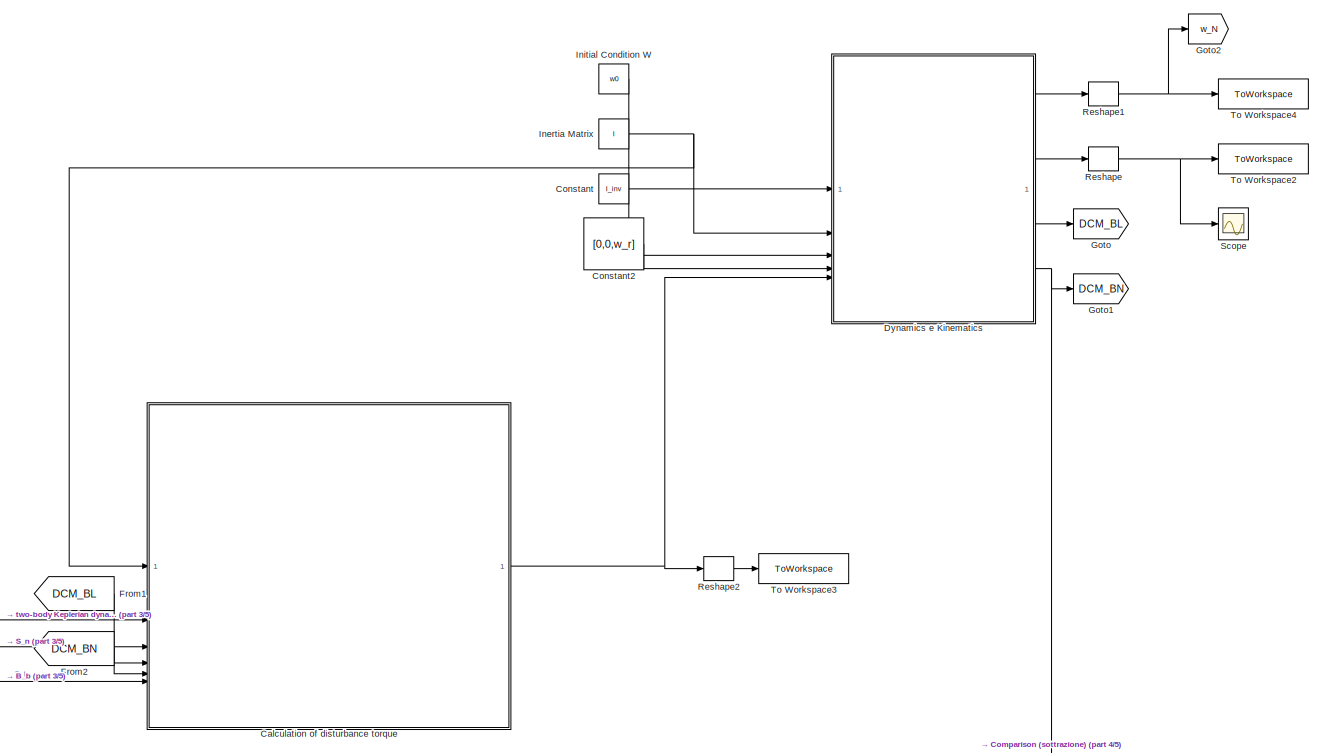
[diagram: root canvas - part 1/5, top center region]
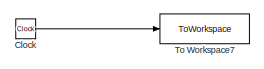
[diagram: root canvas - part 2/5, top left region]
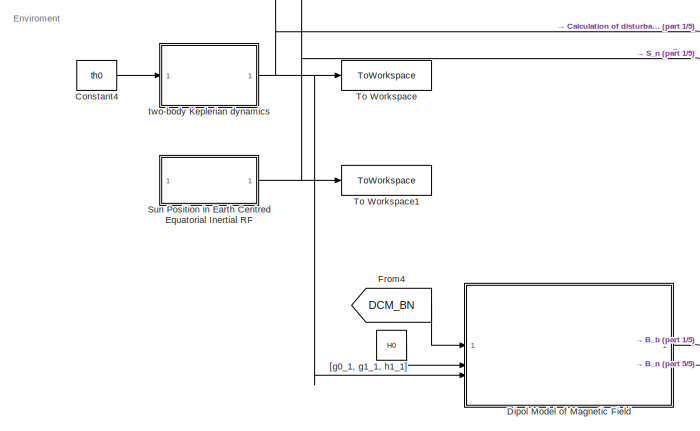
[diagram: root canvas - part 3/5, middle left region]
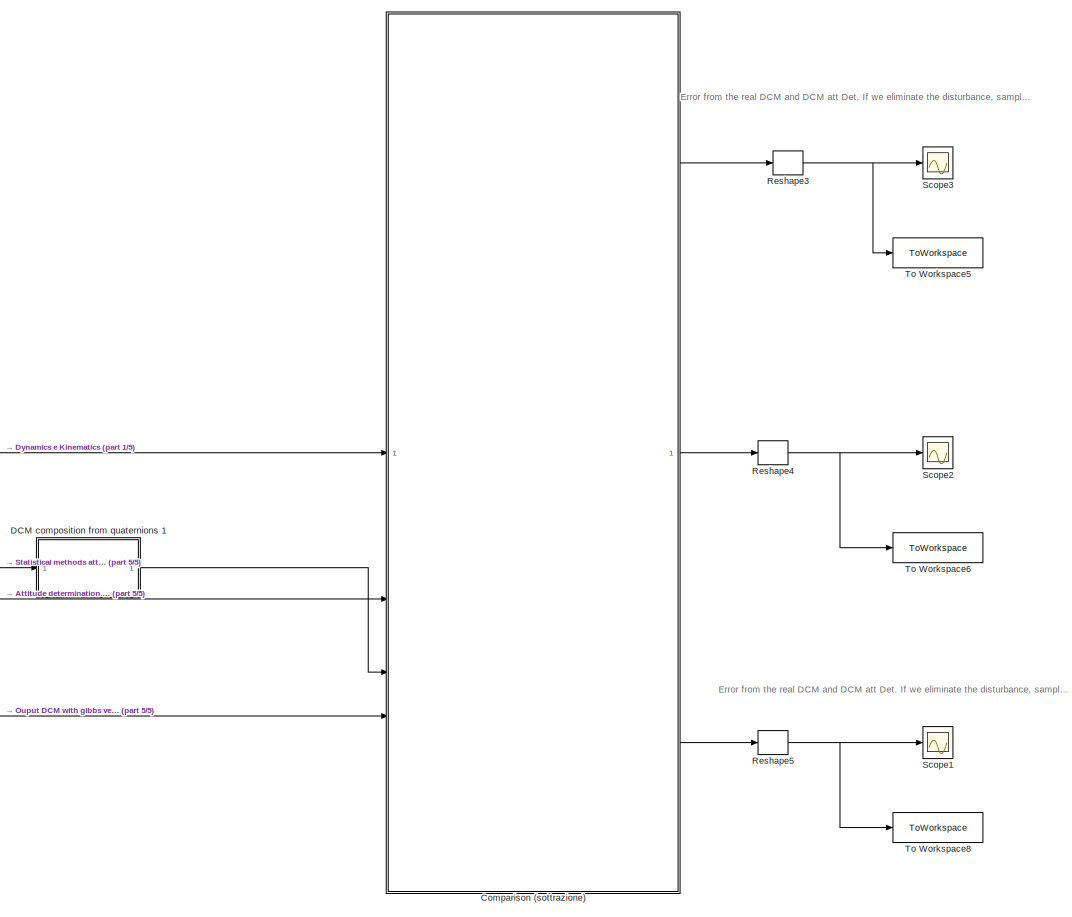
[diagram: root canvas - part 4/5, bottom right region]
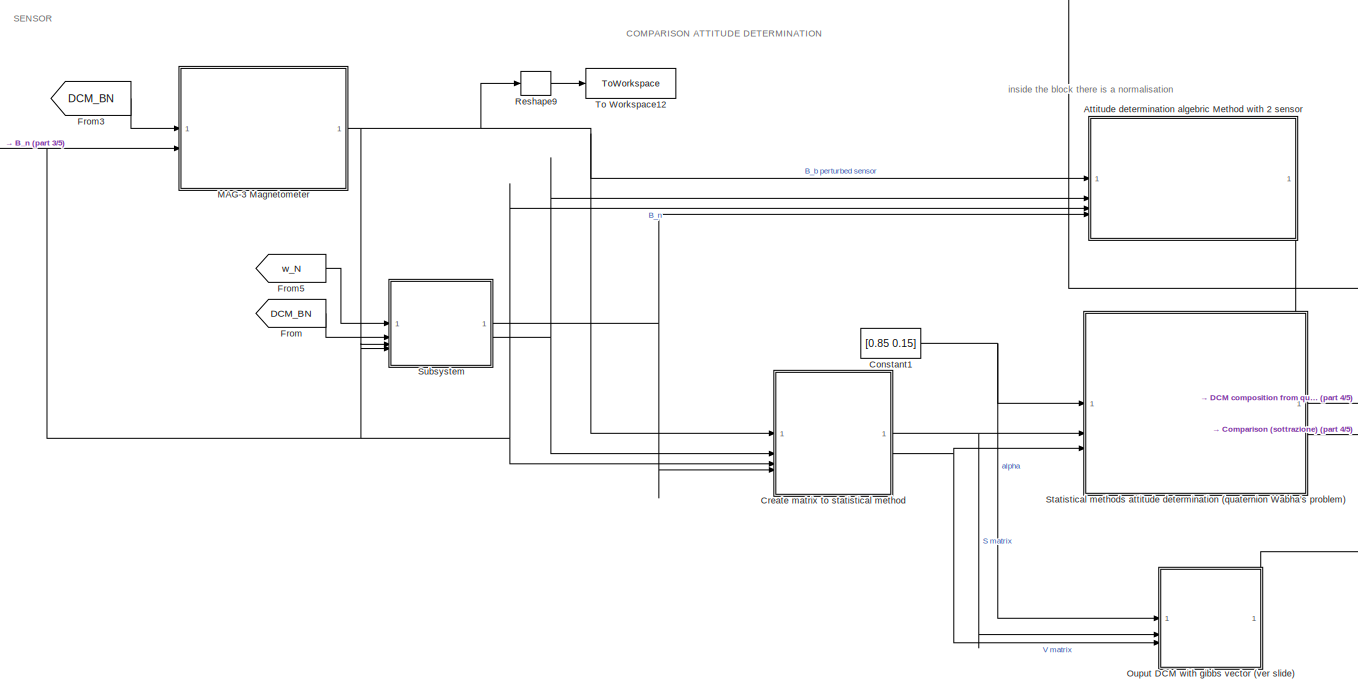
[diagram: root canvas - part 5/5, bottom center region]
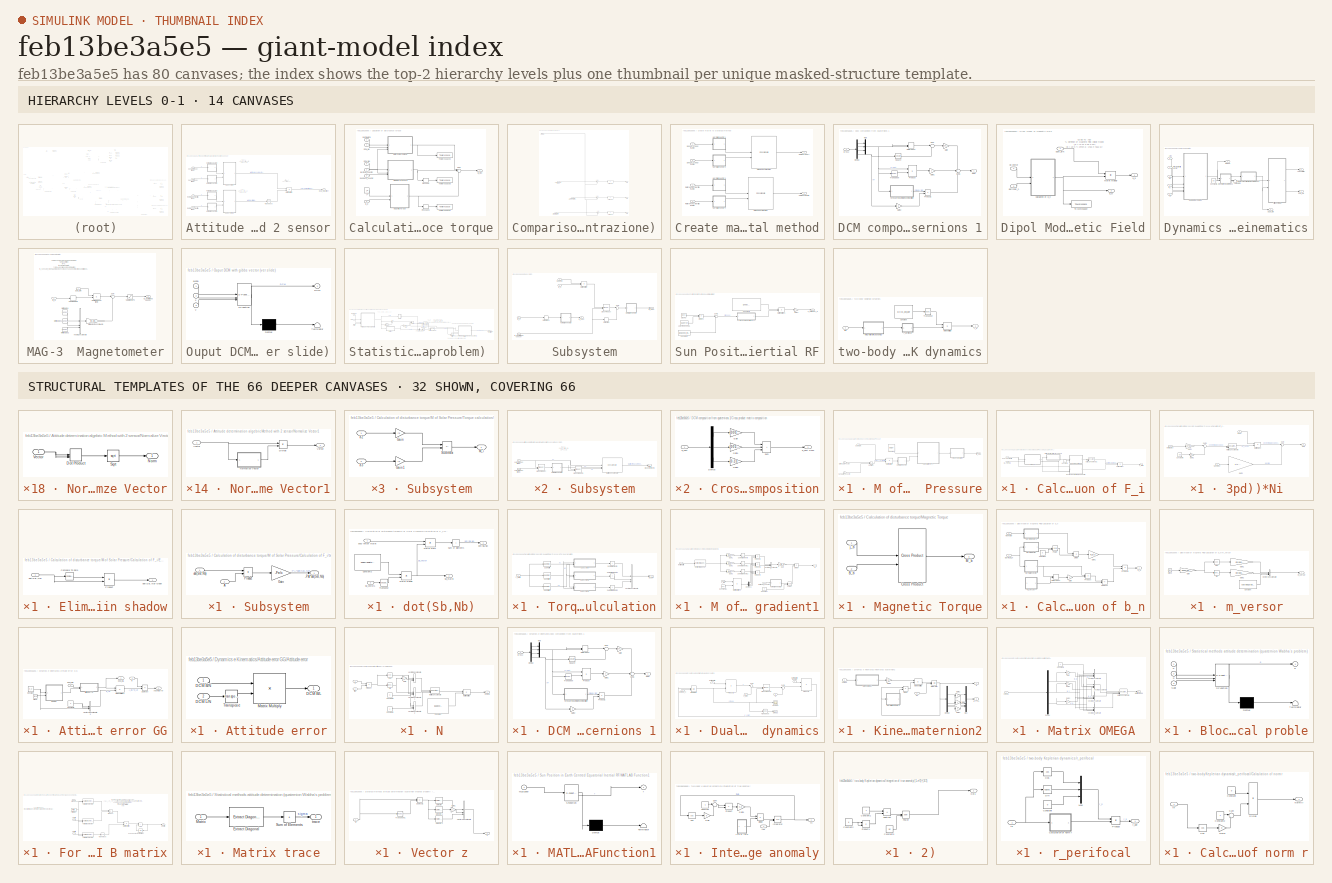
[diagram: thumbnail index - top-2 hierarchy levels (14 canvases) + 32 structural-template representatives of the remaining 66 canvases]
MODEL slx_feb13be3a5e5
KIND model
CONFIG AbsTol = auto
CONFIG EnableMultiTasking = off
CONFIG FixedStep = auto
CONFIG MaxStep = auto
CONFIG MinStep = auto
CONFIG RelTol = 1e-3
CONFIG SampleTimeConstraint = Unconstrained
CONFIG SolverName = VariableStepAuto
CONFIG StartTime = 0.0
CONFIG StopTime = 10.0
BLOCK [SubSystem] Attitude determination algebric Method with 2 sensor
BLOCK [Outport] Attitude determination algebric Method with 2 sensor/DCM_B//N  Att Det
BLOCK [Product] Attitude determination algebric Method with 2 sensor/Matrix Multiply
  Multiplication = Matrix(*)
BLOCK [SubSystem] Attitude determination algebric Method with 2 sensor/Normalize Vector1
BLOCK [Product] Attitude determination algebric Method with 2 sensor/Normalize Vector1/Divide
  Inputs = */
BLOCK [SubSystem] Attitude determination algebric Method with 2 sensor/Normalize Vector1/Normalize Vector
  AncestorBlock = LibrarySAD5/Normalize Vector1
BLOCK [DotProduct] Attitude determination algebric Method with 2 sensor/Normalize Vector1/Normalize Vector/Dot Product
  OutDataTypeStr = Inherit: Inherit via internal rule
BLOCK [Outport] Attitude determination algebric Method with 2 sensor/Normalize Vector1/Normalize Vector/Norm
BLOCK [Sqrt] Attitude determination algebric Method with 2 sensor/Normalize Vector1/Normalize Vector/Sqrt
BLOCK [Inport] Attitude determination algebric Method with 2 sensor/Normalize Vector1/Normalize Vector/Vector
BLOCK [Inport] Attitude determination algebric Method with 2 sensor/Normalize Vector1/Vector
BLOCK [Outport] Attitude determination algebric Method with 2 sensor/Normalize Vector1/Versor
BLOCK [SubSystem] Attitude determination algebric Method with 2 sensor/Normalize Vector2
BLOCK [Product] Attitude determination algebric Method with 2 sensor/Normalize Vector2/Divide
  Inputs = */
BLOCK [SubSystem] Attitude determination algebric Method with 2 sensor/Normalize Vector2/Normalize Vector
  AncestorBlock = LibrarySAD5/Normalize Vector1
BLOCK [DotProduct] Attitude determination algebric Method with 2 sensor/Normalize Vector2/Normalize Vector/Dot Product
  OutDataTypeStr = Inherit: Inherit via internal rule
BLOCK [Outport] Attitude determination algebric Method with 2 sensor/Normalize Vector2/Normalize Vector/Norm
BLOCK [Sqrt] Attitude determination algebric Method with 2 sensor/Normalize Vector2/Normalize Vector/Sqrt
BLOCK [Inport] Attitude determination algebric Method with 2 sensor/Normalize Vector2/Normalize Vector/Vector
BLOCK [Inport] Attitude determination algebric Method with 2 sensor/Normalize Vector2/Vector
BLOCK [Outport] Attitude determination algebric Method with 2 sensor/Normalize Vector2/Versor
BLOCK [SubSystem] Attitude determination algebric Method with 2 sensor/Normalize Vector3
BLOCK [Product] Attitude determination algebric Method with 2 sensor/Normalize Vector3/Divide
  Inputs = */
BLOCK [SubSystem] Attitude determination algebric Method with 2 sensor/Normalize Vector3/Normalize Vector
  AncestorBlock = LibrarySAD5/Normalize Vector1
BLOCK [DotProduct] Attitude determination algebric Method with 2 sensor/Normalize Vector3/Normalize Vector/Dot Product
  OutDataTypeStr = Inherit: Inherit via internal rule
BLOCK [Outport] Attitude determination algebric Method with 2 sensor/Normalize Vector3/Normalize Vector/Norm
BLOCK [Sqrt] Attitude determination algebric Method with 2 sensor/Normalize Vector3/Normalize Vector/Sqrt
BLOCK [Inport] Attitude determination algebric Method with 2 sensor/Normalize Vector3/Normalize Vector/Vector
BLOCK [Inport] Attitude determination algebric Method with 2 sensor/Normalize Vector3/Vector
BLOCK [Outport] Attitude determination algebric Method with 2 sensor/Normalize Vector3/Versor
BLOCK [SubSystem] Attitude determination algebric Method with 2 sensor/Normalize Vector4
BLOCK [Product] Attitude determination algebric Method with 2 sensor/Normalize Vector4/Divide
  Inputs = */
BLOCK [SubSystem] Attitude determination algebric Method with 2 sensor/Normalize Vector4/Normalize Vector
  AncestorBlock = LibrarySAD5/Normalize Vector1
BLOCK [DotProduct] Attitude determination algebric Method with 2 sensor/Normalize Vector4/Normalize Vector/Dot Product
  OutDataTypeStr = Inherit: Inherit via internal rule
BLOCK [Outport] Attitude determination algebric Method with 2 sensor/Normalize Vector4/Normalize Vector/Norm
BLOCK [Sqrt] Attitude determination algebric Method with 2 sensor/Normalize Vector4/Normalize Vector/Sqrt
BLOCK [Inport] Attitude determination algebric Method with 2 sensor/Normalize Vector4/Normalize Vector/Vector
BLOCK [Inport] Attitude determination algebric Method with 2 sensor/Normalize Vector4/Vector
BLOCK [Outport] Attitude determination algebric Method with 2 sensor/Normalize Vector4/Versor
BLOCK [Inport] Attitude determination algebric Method with 2 sensor/Reference1 (Inertial frame)
  Port = 3
BLOCK [Inport] Attitude determination algebric Method with 2 sensor/Reference2 (Inertial frame)
  Port = 4
BLOCK [Inport] Attitude determination algebric Method with 2 sensor/Sensor1 (body frame)
BLOCK [Inport] Attitude determination algebric Method with 2 sensor/Sensor2 (body frame)
  Port = 2
BLOCK [SubSystem] Attitude determination algebric Method with 2 sensor/Subsystem
BLOCK [Reference] Attitude determination algebric Method with 2 sensor/Subsystem/Cross Product  REF=matrix_library/Cross Product
  LibrarySourceBlock = simulink/Matrix\nOperations/Cross Product
  SourceBlock = matrix_library/Cross Product
  SourceType = CrossProduct
BLOCK [Reference] Attitude determination algebric Method with 2 sensor/Subsystem/Cross Product1  REF=matrix_library/Cross Product
  LibrarySourceBlock = simulink/Matrix\nOperations/Cross Product
  SourceBlock = matrix_library/Cross Product
  SourceType = CrossProduct
BLOCK [Concatenate] Attitude determination algebric Method with 2 sensor/Subsystem/Matrix Concatenate
  ConcatenateDimension = 2
  Mode = Multidimensional array
  NumInputs = 3
BLOCK [Outport] Attitude determination algebric Method with 2 sensor/Subsystem/Matrix S Measurements 
BLOCK [SubSystem] Attitude determination algebric Method with 2 sensor/Subsystem/Normalize Vector3
BLOCK [Product] Attitude determination algebric Method with 2 sensor/Subsystem/Normalize Vector3/Divide
  Inputs = */
BLOCK [SubSystem] Attitude determination algebric Method with 2 sensor/Subsystem/Normalize Vector3/Normalize Vector
  AncestorBlock = LibrarySAD5/Normalize Vector1
BLOCK [DotProduct] Attitude determination algebric Method with 2 sensor/Subsystem/Normalize Vector3/Normalize Vector/Dot Product
  OutDataTypeStr = Inherit: Inherit via internal rule
BLOCK [Outport] Attitude determination algebric Method with 2 sensor/Subsystem/Normalize Vector3/Normalize Vector/Norm
BLOCK [Sqrt] Attitude determination algebric Method with 2 sensor/Subsystem/Normalize Vector3/Normalize Vector/Sqrt
BLOCK [Inport] Attitude determination algebric Method with 2 sensor/Subsystem/Normalize Vector3/Normalize Vector/Vector
BLOCK [Inport] Attitude determination algebric Method with 2 sensor/Subsystem/Normalize Vector3/Vector
BLOCK [Outport] Attitude determination algebric Method with 2 sensor/Subsystem/Normalize Vector3/Versor
BLOCK [Inport] Attitude determination algebric Method with 2 sensor/Subsystem/versor p (body frame)
BLOCK [Inport] Attitude determination algebric Method with 2 sensor/Subsystem/versor q (body frame)
  Port = 2
BLOCK [SubSystem] Attitude determination algebric Method with 2 sensor/Subsystem1
BLOCK [Reference] Attitude determination algebric Method with 2 sensor/Subsystem1/Cross Product  REF=matrix_library/Cross Product
  LibrarySourceBlock = simulink/Matrix\nOperations/Cross Product
  SourceBlock = matrix_library/Cross Product
  SourceType = CrossProduct
BLOCK [Reference] Attitude determination algebric Method with 2 sensor/Subsystem1/Cross Product1  REF=matrix_library/Cross Product
  LibrarySourceBlock = simulink/Matrix\nOperations/Cross Product
  SourceBlock = matrix_library/Cross Product
  SourceType = CrossProduct
BLOCK [Concatenate] Attitude determination algebric Method with 2 sensor/Subsystem1/Matrix Concatenate
  ConcatenateDimension = 2
  Mode = Multidimensional array
  NumInputs = 3
BLOCK [Outport] Attitude determination algebric Method with 2 sensor/Subsystem1/Matrix V certain model 
BLOCK [SubSystem] Attitude determination algebric Method with 2 sensor/Subsystem1/Normalize Vector3
BLOCK [Product] Attitude determination algebric Method with 2 sensor/Subsystem1/Normalize Vector3/Divide
  Inputs = */
BLOCK [SubSystem] Attitude determination algebric Method with 2 sensor/Subsystem1/Normalize Vector3/Normalize Vector
  AncestorBlock = LibrarySAD5/Normalize Vector1
BLOCK [DotProduct] Attitude determination algebric Method with 2 sensor/Subsystem1/Normalize Vector3/Normalize Vector/Dot Product
  OutDataTypeStr = Inherit: Inherit via internal rule
BLOCK [Outport] Attitude determination algebric Method with 2 sensor/Subsystem1/Normalize Vector3/Normalize Vector/Norm
BLOCK [Sqrt] Attitude determination algebric Method with 2 sensor/Subsystem1/Normalize Vector3/Normalize Vector/Sqrt
BLOCK [Inport] Attitude determination algebric Method with 2 sensor/Subsystem1/Normalize Vector3/Normalize Vector/Vector
BLOCK [Inport] Attitude determination algebric Method with 2 sensor/Subsystem1/Normalize Vector3/Vector
BLOCK [Outport] Attitude determination algebric Method with 2 sensor/Subsystem1/Normalize Vector3/Versor
BLOCK [Inport] Attitude determination algebric Method with 2 sensor/Subsystem1/versor a (body frame)
BLOCK [Inport] Attitude determination algebric Method with 2 sensor/Subsystem1/versor b (body frame)
  Port = 2
BLOCK [Math] Attitude determination algebric Method with 2 sensor/Transpose
  Operator = transpose
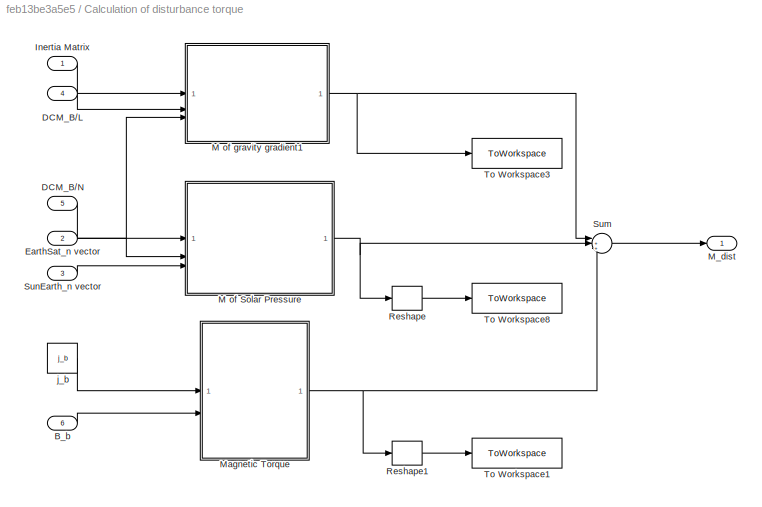
BLOCK [SubSystem] Calculation of disturbance torque
BLOCK [Inport] Calculation of disturbance torque/B_b
  Port = 6
BLOCK [Inport] Calculation of disturbance torque/DCM_B//L
  Port = 4
BLOCK [Inport] Calculation of disturbance torque/DCM_B//N
  Port = 5
BLOCK [Inport] Calculation of disturbance torque/EarthSat_n vector
  Port = 2
BLOCK [Inport] Calculation of disturbance torque/Inertia Matrix
BLOCK [SubSystem] Calculation of disturbance torque/M of Solar Pressure
BLOCK [SubSystem] Calculation of disturbance torque/M of Solar Pressure/Calculation of F_i
BLOCK [SubSystem] Calculation of disturbance torque/M of Solar Pressure/Calculation of F_i/(1-ps)*Sb + (2ps*dot(SB,Nb) +2//3pd))*Ni
BLOCK [Constant] Calculation of disturbance torque/M of Solar Pressure/Calculation of F_i/(1-ps)*Sb + (2ps*dot(SB,Nb) +2//3pd))*Ni/Constant5
  Value = pd
BLOCK [Gain] Calculation of disturbance torque/M of Solar Pressure/Calculation of F_i/(1-ps)*Sb + (2ps*dot(SB,Nb) +2//3pd))*Ni/Gain1
  Gain = 2*ps
BLOCK [Gain] Calculation of disturbance torque/M of Solar Pressure/Calculation of F_i/(1-ps)*Sb + (2ps*dot(SB,Nb) +2//3pd))*Ni/Gain2
  Gain = 2/3
BLOCK [Gain] Calculation of disturbance torque/M of Solar Pressure/Calculation of F_i/(1-ps)*Sb + (2ps*dot(SB,Nb) +2//3pd))*Ni/Gain3
  Gain = [(A1 - ps) (A1 - ps) (A1 - ps)]
BLOCK [Concatenate] Calculation of disturbance torque/M of Solar Pressure/Calculation of F_i/(1-ps)*Sb + (2ps*dot(SB,Nb) +2//3pd))*Ni/Matrix Concatenate
  ConcatenateDimension = 2
  Mode = Multidimensional array
  NumInputs = 3
BLOCK [Product] Calculation of disturbance torque/M of Solar Pressure/Calculation of F_i/(1-ps)*Sb + (2ps*dot(SB,Nb) +2//3pd))*Ni/Matrix Muly2
BLOCK [Outport] Calculation of disturbance torque/M of Solar Pressure/Calculation of F_i/(1-ps)*Sb + (2ps*dot(SB,Nb) +2//3pd))*Ni/Out1
BLOCK [Inport] Calculation of disturbance torque/M of Solar Pressure/Calculation of F_i/(1-ps)*Sb + (2ps*dot(SB,Nb) +2//3pd))*Ni/Sb versor
  Port = 3
BLOCK [Sum] Calculation of disturbance torque/M of Solar Pressure/Calculation of F_i/(1-ps)*Sb + (2ps*dot(SB,Nb) +2//3pd))*Ni/Sum
  Inputs = |++
BLOCK [Sum] Calculation of disturbance torque/M of Solar Pressure/Calculation of F_i/(1-ps)*Sb + (2ps*dot(SB,Nb) +2//3pd))*Ni/Sum1
  Inputs = |++
BLOCK [Inport] Calculation of disturbance torque/M of Solar Pressure/Calculation of F_i/(1-ps)*Sb + (2ps*dot(SB,Nb) +2//3pd))*Ni/body
BLOCK [Inport] Calculation of disturbance torque/M of Solar Pressure/Calculation of F_i/(1-ps)*Sb + (2ps*dot(SB,Nb) +2//3pd))*Ni/dot(Sb,Nb)
  Port = 2
BLOCK [Constant] Calculation of disturbance torque/M of Solar Pressure/Calculation of F_i/Constant1
  Value = A
BLOCK [SubSystem] Calculation of disturbance torque/M of Solar Pressure/Calculation of F_i/Eliminate effect of face in shadow
BLOCK [Reference] Calculation of disturbance torque/M of Solar Pressure/Calculation of F_i/Eliminate effect of face in shadow/Compare To Zero  REF=simulink/Logic and Bit
Operations/Compare
To Zero
  SourceBlock = simulink/Logic and Bit\nOperations/Compare\nTo Zero
  SourceType = Compare To Zero
BLOCK [Product] Calculation of disturbance torque/M of Solar Pressure/Calculation of F_i/Eliminate effect of face in shadow/Product
BLOCK [Inport] Calculation of disturbance torque/M of Solar Pressure/Calculation of F_i/Eliminate effect of face in shadow/dot(SB,Nb)
BLOCK [Outport] Calculation of disturbance torque/M of Solar Pressure/Calculation of F_i/Eliminate effect of face in shadow/dot(SB,Nb)-clean
BLOCK [Outport] Calculation of disturbance torque/M of Solar Pressure/Calculation of F_i/F_i matrix
BLOCK [Concatenate] Calculation of disturbance torque/M of Solar Pressure/Calculation of F_i/Matrix Concatenate1
  ConcatenateDimension = 2
  Mode = Multidimensional array
  NumInputs = 3
BLOCK [Product] Calculation of disturbance torque/M of Solar Pressure/Calculation of F_i/Matrix Multiply1
BLOCK [Inport] Calculation of disturbance torque/M of Solar Pressure/Calculation of F_i/Sb_vector1
  Port = 2
BLOCK [SubSystem] Calculation of disturbance torque/M of Solar Pressure/Calculation of F_i/Subsystem
BLOCK [Outport] Calculation of disturbance torque/M of Solar Pressure/Calculation of F_i/Subsystem/-PA*dot(SB,Nb)
BLOCK [Inport] Calculation of disturbance torque/M of Solar Pressure/Calculation of F_i/Subsystem/A
  Port = 2
BLOCK [Gain] Calculation of disturbance torque/M of Solar Pressure/Calculation of F_i/Subsystem/Gain
  Gain = -Fe/c
BLOCK [Product] Calculation of disturbance torque/M of Solar Pressure/Calculation of F_i/Subsystem/Product
BLOCK [Inport] Calculation of disturbance torque/M of Solar Pressure/Calculation of F_i/Subsystem/dot(SB,Nb)
BLOCK [Inport] Calculation of disturbance torque/M of Solar Pressure/Calculation of F_i/body versor matrix
BLOCK [SubSystem] Calculation of disturbance torque/M of Solar Pressure/Calculation of F_i/dot(Sb,Nb)
BLOCK [Constant] Calculation of disturbance torque/M of Solar Pressure/Calculation of F_i/dot(Sb,Nb)/Constant2
  Value = ones(length(BODY),1)
  VectorParams1D = off
BLOCK [Product] Calculation of disturbance torque/M of Solar Pressure/Calculation of F_i/dot(Sb,Nb)/Matrix Multiply
  Multiplication = Matrix(*)
BLOCK [Product] Calculation of disturbance torque/M of Solar Pressure/Calculation of F_i/dot(Sb,Nb)/Matrix Muly1
BLOCK [Outport] Calculation of disturbance torque/M of Solar Pressure/Calculation of F_i/dot(Sb,Nb)/Sb_matrix
  Port = 2
BLOCK [Inport] Calculation of disturbance torque/M of Solar Pressure/Calculation of F_i/dot(Sb,Nb)/Sb_vector1
  Port = 2
BLOCK [Sum] Calculation of disturbance torque/M of Solar Pressure/Calculation of F_i/dot(Sb,Nb)/Sum of Elements
  CollapseDim = 2
  CollapseMode = Specified dimension
  IconShape = rectangular
  Inputs = +
BLOCK [Math] Calculation of disturbance torque/M of Solar Pressure/Calculation of F_i/dot(Sb,Nb)/Transpose
  Operator = transpose
BLOCK [Inport] Calculation of disturbance torque/M of Solar Pressure/Calculation of F_i/dot(Sb,Nb)/body versor matrix
BLOCK [Outport] Calculation of disturbance torque/M of Solar Pressure/Calculation of F_i/dot(Sb,Nb)/dot(SB,Nb)
BLOCK [Constant] Calculation of disturbance torque/M of Solar Pressure/Constant
  Value = BODY
BLOCK [Inport] Calculation of disturbance torque/M of Solar Pressure/DCM_B//N
BLOCK [Inport] Calculation of disturbance torque/M of Solar Pressure/EarthSat_n vector
  Port = 2
BLOCK [Outport] Calculation of disturbance torque/M of Solar Pressure/M_SRP
BLOCK [Product] Calculation of disturbance torque/M of Solar Pressure/Matrix Multiply
  Multiplication = Matrix(*)
BLOCK [SubSystem] Calculation of disturbance torque/M of Solar Pressure/Normalize Vector
BLOCK [Product] Calculation of disturbance torque/M of Solar Pressure/Normalize Vector/Divide
  Inputs = */
BLOCK [SubSystem] Calculation of disturbance torque/M of Solar Pressure/Normalize Vector/Normalize Vector
  AncestorBlock = LibrarySAD5/Normalize Vector1
BLOCK [DotProduct] Calculation of disturbance torque/M of Solar Pressure/Normalize Vector/Normalize Vector/Dot Product
  OutDataTypeStr = Inherit: Inherit via internal rule
BLOCK [Outport] Calculation of disturbance torque/M of Solar Pressure/Normalize Vector/Normalize Vector/Norm
BLOCK [Sqrt] Calculation of disturbance torque/M of Solar Pressure/Normalize Vector/Normalize Vector/Sqrt
BLOCK [Inport] Calculation of disturbance torque/M of Solar Pressure/Normalize Vector/Normalize Vector/Vector
BLOCK [Inport] Calculation of disturbance torque/M of Solar Pressure/Normalize Vector/Vector
BLOCK [Outport] Calculation of disturbance torque/M of Solar Pressure/Normalize Vector/Versor
BLOCK [Sum] Calculation of disturbance torque/M of Solar Pressure/Subtract
  IconShape = rectangular
  Inputs = --
BLOCK [Inport] Calculation of disturbance torque/M of Solar Pressure/SunEarth_n vector
  Port = 3
BLOCK [SubSystem] Calculation of disturbance torque/M of Solar Pressure/Torque calculation
BLOCK [Inport] Calculation of disturbance torque/M of Solar Pressure/Torque calculation/F_i Matrix
BLOCK [Outport] Calculation of disturbance torque/M of Solar Pressure/Torque calculation/M_SRP
BLOCK [Reference] Calculation of disturbance torque/M of Solar Pressure/Torque calculation/Submatrix  REF=matrix_library/Submatrix
  LibrarySourceBlock = simulink/Matrix\nOperations/Submatrix
  SourceBlock = matrix_library/Submatrix
  SourceType = Submatrix
BLOCK [Reference] Calculation of disturbance torque/M of Solar Pressure/Torque calculation/Submatrix1  REF=matrix_library/Submatrix
  LibrarySourceBlock = simulink/Matrix\nOperations/Submatrix
  SourceBlock = matrix_library/Submatrix
  SourceType = Submatrix
BLOCK [Reference] Calculation of disturbance torque/M of Solar Pressure/Torque calculation/Submatrix2  REF=matrix_library/Submatrix
  LibrarySourceBlock = simulink/Matrix\nOperations/Submatrix
  SourceBlock = matrix_library/Submatrix
  SourceType = Submatrix
BLOCK [SubSystem] Calculation of disturbance torque/M of Solar Pressure/Torque calculation/Subsystem
BLOCK [Gain] Calculation of disturbance torque/M of Solar Pressure/Torque calculation/Subsystem/Gain
  Gain = r3
BLOCK [Gain] Calculation of disturbance torque/M of Solar Pressure/Torque calculation/Subsystem/Gain1
  Gain = r2
BLOCK [Outport] Calculation of disturbance torque/M of Solar Pressure/Torque calculation/Subsystem/M_i
BLOCK [Sum] Calculation of disturbance torque/M of Solar Pressure/Torque calculation/Subsystem/Subtract
  IconShape = rectangular
  Inputs = +-
BLOCK [Inport] Calculation of disturbance torque/M of Solar Pressure/Torque calculation/Subsystem/a2
BLOCK [Inport] Calculation of disturbance torque/M of Solar Pressure/Torque calculation/Subsystem/a3
  Port = 2
BLOCK [SubSystem] Calculation of disturbance torque/M of Solar Pressure/Torque calculation/Subsystem1
BLOCK [Gain] Calculation of disturbance torque/M of Solar Pressure/Torque calculation/Subsystem1/Gain
  Gain = r1
BLOCK [Gain] Calculation of disturbance torque/M of Solar Pressure/Torque calculation/Subsystem1/Gain1
  Gain = r3
BLOCK [Outport] Calculation of disturbance torque/M of Solar Pressure/Torque calculation/Subsystem1/M_j
BLOCK [Sum] Calculation of disturbance torque/M of Solar Pressure/Torque calculation/Subsystem1/Subtract
  IconShape = rectangular
  Inputs = +-
BLOCK [Inport] Calculation of disturbance torque/M of Solar Pressure/Torque calculation/Subsystem1/a1
  Port = 2
BLOCK [Inport] Calculation of disturbance torque/M of Solar Pressure/Torque calculation/Subsystem1/a3
BLOCK [SubSystem] Calculation of disturbance torque/M of Solar Pressure/Torque calculation/Subsystem2
BLOCK [Gain] Calculation of disturbance torque/M of Solar Pressure/Torque calculation/Subsystem2/Gain
  Gain = r2
BLOCK [Gain] Calculation of disturbance torque/M of Solar Pressure/Torque calculation/Subsystem2/Gain1
  Gain = r1
BLOCK [Outport] Calculation of disturbance torque/M of Solar Pressure/Torque calculation/Subsystem2/M_i
BLOCK [Sum] Calculation of disturbance torque/M of Solar Pressure/Torque calculation/Subsystem2/Subtract
  IconShape = rectangular
  Inputs = +-
BLOCK [Inport] Calculation of disturbance torque/M of Solar Pressure/Torque calculation/Subsystem2/a1
BLOCK [Inport] Calculation of disturbance torque/M of Solar Pressure/Torque calculation/Subsystem2/a2
  Port = 2
BLOCK [Sum] Calculation of disturbance torque/M of Solar Pressure/Torque calculation/Sum of Elements
  IconShape = rectangular
  Inputs = +
BLOCK [Sum] Calculation of disturbance torque/M of Solar Pressure/Torque calculation/Sum of Elements1
  IconShape = rectangular
  Inputs = +
BLOCK [Sum] Calculation of disturbance torque/M of Solar Pressure/Torque calculation/Sum of Elements2
  IconShape = rectangular
  Inputs = +
BLOCK [Concatenate] Calculation of disturbance torque/M of Solar Pressure/Torque calculation/Vector Concatenate
  NumInputs = 3
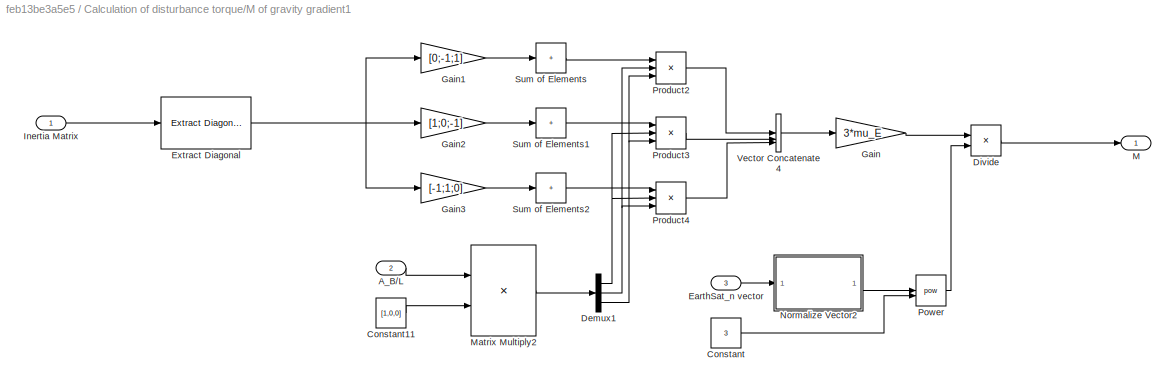
BLOCK [SubSystem] Calculation of disturbance torque/M of gravity gradient1
BLOCK [Inport] Calculation of disturbance torque/M of gravity gradient1/A_B//L
  Port = 2
BLOCK [Constant] Calculation of disturbance torque/M of gravity gradient1/Constant
  Value = 3
BLOCK [Constant] Calculation of disturbance torque/M of gravity gradient1/Constant11
  Value = [1,0,0]
BLOCK [Demux] Calculation of disturbance torque/M of gravity gradient1/Demux1
  Outputs = 3
BLOCK [Product] Calculation of disturbance torque/M of gravity gradient1/Divide
  Inputs = */
BLOCK [Inport] Calculation of disturbance torque/M of gravity gradient1/EarthSat_n vector
  Port = 3
BLOCK [Reference] Calculation of disturbance torque/M of gravity gradient1/Extract Diagonal  REF=matrix_library/Extract Diagonal
  LibrarySourceBlock = simulink/Matrix\nOperations/Extract Diagonal
  SourceBlock = matrix_library/Extract Diagonal
  SourceType = Extract Diagonal
BLOCK [Gain] Calculation of disturbance torque/M of gravity gradient1/Gain
  Gain = 3*mu_E
BLOCK [Gain] Calculation of disturbance torque/M of gravity gradient1/Gain1
  Gain = [0;-1;1]
BLOCK [Gain] Calculation of disturbance torque/M of gravity gradient1/Gain2
  Gain = [1;0;-1]
BLOCK [Gain] Calculation of disturbance torque/M of gravity gradient1/Gain3
  Gain = [-1;1;0]
BLOCK [Inport] Calculation of disturbance torque/M of gravity gradient1/Inertia Matrix
BLOCK [Outport] Calculation of disturbance torque/M of gravity gradient1/M
BLOCK [Product] Calculation of disturbance torque/M of gravity gradient1/Matrix Multiply2
  Multiplication = Matrix(*)
BLOCK [SubSystem] Calculation of disturbance torque/M of gravity gradient1/Normalize Vector2
  AncestorBlock = LibrarySAD5/Normalize Vector1
BLOCK [DotProduct] Calculation of disturbance torque/M of gravity gradient1/Normalize Vector2/Dot Product
  OutDataTypeStr = Inherit: Inherit via internal rule
BLOCK [Outport] Calculation of disturbance torque/M of gravity gradient1/Normalize Vector2/Norm
BLOCK [Sqrt] Calculation of disturbance torque/M of gravity gradient1/Normalize Vector2/Sqrt
BLOCK [Inport] Calculation of disturbance torque/M of gravity gradient1/Normalize Vector2/Vector
BLOCK [Math] Calculation of disturbance torque/M of gravity gradient1/Power
  Operator = pow
BLOCK [Product] Calculation of disturbance torque/M of gravity gradient1/Product2
  Inputs = 3
BLOCK [Product] Calculation of disturbance torque/M of gravity gradient1/Product3
  Inputs = 3
BLOCK [Product] Calculation of disturbance torque/M of gravity gradient1/Product4
  Inputs = 3
BLOCK [Sum] Calculation of disturbance torque/M of gravity gradient1/Sum of Elements
  IconShape = rectangular
  Inputs = +
BLOCK [Sum] Calculation of disturbance torque/M of gravity gradient1/Sum of Elements1
  IconShape = rectangular
  Inputs = +
BLOCK [Sum] Calculation of disturbance torque/M of gravity gradient1/Sum of Elements2
  IconShape = rectangular
  Inputs = +
BLOCK [Concatenate] Calculation of disturbance torque/M of gravity gradient1/Vector Concatenate4
  NumInputs = 3
BLOCK [Outport] Calculation of disturbance torque/M_dist
BLOCK [SubSystem] Calculation of disturbance torque/Magnetic Torque
BLOCK [Inport] Calculation of disturbance torque/Magnetic Torque/B_b
  Port = 2
BLOCK [Reference] Calculation of disturbance torque/Magnetic Torque/Cross Product  REF=matrix_library/Cross Product
  LibrarySourceBlock = simulink/Matrix\nOperations/Cross Product
  SourceBlock = matrix_library/Cross Product
  SourceType = CrossProduct
BLOCK [Outport] Calculation of disturbance torque/Magnetic Torque/M_b
BLOCK [Inport] Calculation of disturbance torque/Magnetic Torque/j_b
BLOCK [Reshape] Calculation of disturbance torque/Reshape
BLOCK [Reshape] Calculation of disturbance torque/Reshape1
BLOCK [Sum] Calculation of disturbance torque/Sum
  Inputs = |+++
BLOCK [Inport] Calculation of disturbance torque/SunEarth_n vector
  Port = 3
BLOCK [ToWorkspace] Calculation of disturbance torque/To Workspace1
  FixptAsFi = on
  MaxDataPoints = inf
  SampleTime = -1
  VariableName = M_b
BLOCK [ToWorkspace] Calculation of disturbance torque/To Workspace3
  FixptAsFi = on
  MaxDataPoints = inf
  SampleTime = -1
  VariableName = M_GG
BLOCK [ToWorkspace] Calculation of disturbance torque/To Workspace8
  FixptAsFi = on
  MaxDataPoints = inf
  SampleTime = -1
  VariableName = M_SRP
BLOCK [Constant] Calculation of disturbance torque/j_b
  Value = j_b
BLOCK [Clock] Clock
BLOCK [SubSystem] Comparison (sottrazione)
BLOCK [Inport] Comparison (sottrazione)/DCM from Algebric method
  Port = 2
BLOCK [Inport] Comparison (sottrazione)/DCM from Statistic method (gibbs) 
  Port = 4
BLOCK [Inport] Comparison (sottrazione)/DCM from Statistic method (quaternion) 
  Port = 3
BLOCK [Sum] Comparison (sottrazione)/Matrix Sum
  IconShape = rectangular
  Inputs = +
BLOCK [Sum] Comparison (sottrazione)/Matrix Sum1
  IconShape = rectangular
  Inputs = +
BLOCK [Sum] Comparison (sottrazione)/Matrix Sum2
  IconShape = rectangular
  Inputs = +
BLOCK [Outport] Comparison (sottrazione)/Out1
BLOCK [Outport] Comparison (sottrazione)/Out2
  Port = 2
BLOCK [Outport] Comparison (sottrazione)/Out3
  Port = 3
BLOCK [Sum] Comparison (sottrazione)/Sum
  Inputs = |+-
BLOCK [Sum] Comparison (sottrazione)/Sum1
  Inputs = |+-
BLOCK [Sum] Comparison (sottrazione)/Sum2
  Inputs = |+-
BLOCK [Inport] Comparison (sottrazione)/True DCM
BLOCK [Constant] Constant
  Value = I_inv
BLOCK [Constant] Constant1
  Value = [0.85 0.15]
BLOCK [Constant] Constant2
  Value = [0,0,w_r]
BLOCK [Constant] Constant4
  Value = th0
BLOCK [SubSystem] Create matrix to statistical method
BLOCK [Concatenate] Create matrix to statistical method/Matrix Concatenate1
  ConcatenateDimension = 2
  Mode = Multidimensional array
BLOCK [Concatenate] Create matrix to statistical method/Matrix Concatenate2
  ConcatenateDimension = 2
  Mode = Multidimensional array
BLOCK [SubSystem] Create matrix to statistical method/Normalize Vector1
BLOCK [Product] Create matrix to statistical method/Normalize Vector1/Divide
  Inputs = */
BLOCK [SubSystem] Create matrix to statistical method/Normalize Vector1/Normalize Vector
  AncestorBlock = LibrarySAD5/Normalize Vector1
BLOCK [DotProduct] Create matrix to statistical method/Normalize Vector1/Normalize Vector/Dot Product
  OutDataTypeStr = Inherit: Inherit via internal rule
BLOCK [Outport] Create matrix to statistical method/Normalize Vector1/Normalize Vector/Norm
BLOCK [Sqrt] Create matrix to statistical method/Normalize Vector1/Normalize Vector/Sqrt
BLOCK [Inport] Create matrix to statistical method/Normalize Vector1/Normalize Vector/Vector
BLOCK [Inport] Create matrix to statistical method/Normalize Vector1/Vector
BLOCK [Outport] Create matrix to statistical method/Normalize Vector1/Versor
BLOCK [SubSystem] Create matrix to statistical method/Normalize Vector2
BLOCK [Product] Create matrix to statistical method/Normalize Vector2/Divide
  Inputs = */
BLOCK [SubSystem] Create matrix to statistical method/Normalize Vector2/Normalize Vector
  AncestorBlock = LibrarySAD5/Normalize Vector1
BLOCK [DotProduct] Create matrix to statistical method/Normalize Vector2/Normalize Vector/Dot Product
  OutDataTypeStr = Inherit: Inherit via internal rule
BLOCK [Outport] Create matrix to statistical method/Normalize Vector2/Normalize Vector/Norm
BLOCK [Sqrt] Create matrix to statistical method/Normalize Vector2/Normalize Vector/Sqrt
BLOCK [Inport] Create matrix to statistical method/Normalize Vector2/Normalize Vector/Vector
BLOCK [Inport] Create matrix to statistical method/Normalize Vector2/Vector
BLOCK [Outport] Create matrix to statistical method/Normalize Vector2/Versor
BLOCK [SubSystem] Create matrix to statistical method/Normalize Vector3
BLOCK [Product] Create matrix to statistical method/Normalize Vector3/Divide
  Inputs = */
BLOCK [SubSystem] Create matrix to statistical method/Normalize Vector3/Normalize Vector
  AncestorBlock = LibrarySAD5/Normalize Vector1
BLOCK [DotProduct] Create matrix to statistical method/Normalize Vector3/Normalize Vector/Dot Product
  OutDataTypeStr = Inherit: Inherit via internal rule
BLOCK [Outport] Create matrix to statistical method/Normalize Vector3/Normalize Vector/Norm
BLOCK [Sqrt] Create matrix to statistical method/Normalize Vector3/Normalize Vector/Sqrt
BLOCK [Inport] Create matrix to statistical method/Normalize Vector3/Normalize Vector/Vector
BLOCK [Inport] Create matrix to statistical method/Normalize Vector3/Vector
BLOCK [Outport] Create matrix to statistical method/Normalize Vector3/Versor
BLOCK [SubSystem] Create matrix to statistical method/Normalize Vector4
BLOCK [Product] Create matrix to statistical method/Normalize Vector4/Divide
  Inputs = */
BLOCK [SubSystem] Create matrix to statistical method/Normalize Vector4/Normalize Vector
  AncestorBlock = LibrarySAD5/Normalize Vector1
BLOCK [DotProduct] Create matrix to statistical method/Normalize Vector4/Normalize Vector/Dot Product
  OutDataTypeStr = Inherit: Inherit via internal rule
BLOCK [Outport] Create matrix to statistical method/Normalize Vector4/Normalize Vector/Norm
BLOCK [Sqrt] Create matrix to statistical method/Normalize Vector4/Normalize Vector/Sqrt
BLOCK [Inport] Create matrix to statistical method/Normalize Vector4/Normalize Vector/Vector
BLOCK [Inport] Create matrix to statistical method/Normalize Vector4/Vector
BLOCK [Outport] Create matrix to statistical method/Normalize Vector4/Versor
BLOCK [Inport] Create matrix to statistical method/Reference1 (Inertial frame)
  Port = 3
BLOCK [Inport] Create matrix to statistical method/Reference2 (Inertial frame)
  Port = 4
BLOCK [Outport] Create matrix to statistical method/S matrix (body)
BLOCK [Inport] Create matrix to statistical method/Sensor1 (body frame)
BLOCK [Inport] Create matrix to statistical method/Sensor2 (body frame)
  Port = 2
BLOCK [Outport] Create matrix to statistical method/V matrix (inertia)
  Port = 2
BLOCK [SubSystem] DCM composition from quaternions 1
  AncestorBlock = LibrarySAD5/DCM composition from quaternions
BLOCK [SubSystem] DCM composition from quaternions 1/Cross product matrix composition
BLOCK [Demux] DCM composition from quaternions 1/Cross product matrix composition/Demux
  Outputs = 3
BLOCK [Gain] DCM composition from quaternions 1/Cross product matrix composition/Gain
  Gain = [0 0 0; 0 0 -1; 0 1 0]
BLOCK [Gain] DCM composition from quaternions 1/Cross product matrix composition/Gain1
  Gain = [0 0 1; 0 0 0; -1 0 0]
BLOCK [Gain] DCM composition from quaternions 1/Cross product matrix composition/Gain2
  Gain = [0 -1 0; 1 0 0; 0 0 0]
BLOCK [Sum] DCM composition from quaternions 1/Cross product matrix composition/Sum
  IconShape = rectangular
  Inputs = +++
BLOCK [Inport] DCM composition from quaternions 1/Cross product matrix composition/q_vect
BLOCK [Outport] DCM composition from quaternions 1/Cross product matrix composition/q_vect cross
BLOCK [Outport] DCM composition from quaternions 1/DCM
BLOCK [Demux] DCM composition from quaternions 1/Demux
BLOCK [DotProduct] DCM composition from quaternions 1/Dot Product
  OutDataTypeStr = Inherit: Inherit via internal rule
BLOCK [Gain] DCM composition from quaternions 1/Gain
  Gain = [1 0 0; 0 1 0; 0 0 1]
BLOCK [Gain] DCM composition from quaternions 1/Gain1
  Gain = 2
BLOCK [Gain] DCM composition from quaternions 1/Gain2
  Gain = -2
BLOCK [Mux] DCM composition from quaternions 1/Mux
  DisplayOption = bar
  Inputs = 3
BLOCK [Product] DCM composition from quaternions 1/Product
  Multiplication = Matrix(*)
BLOCK [Product] DCM composition from quaternions 1/Product1
BLOCK [Math] DCM composition from quaternions 1/Square
  Operator = square
BLOCK [Sum] DCM composition from quaternions 1/Sum
  Inputs = |-+
BLOCK [Sum] DCM composition from quaternions 1/Sum1
  Inputs = +++
BLOCK [Math] DCM composition from quaternions 1/Transpose
  Operator = transpose
BLOCK [Inport] DCM composition from quaternions 1/q(4x1)
BLOCK [SubSystem] Dipol Model of Magnetic Field
BLOCK [SubSystem] Dipol Model of Magnetic Field/Calculation of b_n
BLOCK [Constant] Dipol Model of Magnetic Field/Calculation of b_n/Constant
  Value = 3
BLOCK [Product] Dipol Model of Magnetic Field/Calculation of b_n/Divide
  Inputs = */
BLOCK [DotProduct] Dipol Model of Magnetic Field/Calculation of b_n/Dot Product
  OutDataTypeStr = Inherit: Inherit via internal rule
BLOCK [Inport] Dipol Model of Magnetic Field/Calculation of b_n/EarthSat_n
  Port = 2
BLOCK [Gain] Dipol Model of Magnetic Field/Calculation of b_n/Gain
  Gain = 3
BLOCK [Gain] Dipol Model of Magnetic Field/Calculation of b_n/Gain1
  Gain = R_E^3
BLOCK [Inport] Dipol Model of Magnetic Field/Calculation of b_n/H0 vector
BLOCK [SubSystem] Dipol Model of Magnetic Field/Calculation of b_n/Norm of Vector
  AncestorBlock = LibrarySAD5/Normalize Vector1
BLOCK [SubSystem] Dipol Model of Magnetic Field/Calculation of b_n/Norm of Vector H
  AncestorBlock = LibrarySAD5/Normalize Vector1
BLOCK [DotProduct] Dipol Model of Magnetic Field/Calculation of b_n/Norm of Vector H/Dot Product
  OutDataTypeStr = Inherit: Inherit via internal rule
BLOCK [Outport] Dipol Model of Magnetic Field/Calculation of b_n/Norm of Vector H/Norm
BLOCK [Sqrt] Dipol Model of Magnetic Field/Calculation of b_n/Norm of Vector H/Sqrt
BLOCK [Inport] Dipol Model of Magnetic Field/Calculation of b_n/Norm of Vector H/Vector
BLOCK [DotProduct] Dipol Model of Magnetic Field/Calculation of b_n/Norm of Vector/Dot Product
  OutDataTypeStr = Inherit: Inherit via internal rule
BLOCK [Outport] Dipol Model of Magnetic Field/Calculation of b_n/Norm of Vector/Norm
BLOCK [Sqrt] Dipol Model of Magnetic Field/Calculation of b_n/Norm of Vector/Sqrt
BLOCK [Inport] Dipol Model of Magnetic Field/Calculation of b_n/Norm of Vector/Vector
BLOCK [SubSystem] Dipol Model of Magnetic Field/Calculation of b_n/Normalize Vector
BLOCK [Product] Dipol Model of Magnetic Field/Calculation of b_n/Normalize Vector/Divide
  Inputs = */
BLOCK [SubSystem] Dipol Model of Magnetic Field/Calculation of b_n/Normalize Vector/Normalize Vector1
  AncestorBlock = LibrarySAD5/Normalize Vector1
BLOCK [DotProduct] Dipol Model of Magnetic Field/Calculation of b_n/Normalize Vector/Normalize Vector1/Dot Product
  OutDataTypeStr = Inherit: Inherit via internal rule
BLOCK [Outport] Dipol Model of Magnetic Field/Calculation of b_n/Normalize Vector/Normalize Vector1/Norm
BLOCK [Sqrt] Dipol Model of Magnetic Field/Calculation of b_n/Normalize Vector/Normalize Vector1/Sqrt
BLOCK [Inport] Dipol Model of Magnetic Field/Calculation of b_n/Normalize Vector/Normalize Vector1/Vector
BLOCK [Inport] Dipol Model of Magnetic Field/Calculation of b_n/Normalize Vector/Vector
BLOCK [Outport] Dipol Model of Magnetic Field/Calculation of b_n/Normalize Vector/Versor
BLOCK [Math] Dipol Model of Magnetic Field/Calculation of b_n/Power
  Operator = pow
BLOCK [Product] Dipol Model of Magnetic Field/Calculation of b_n/Product
BLOCK [Product] Dipol Model of Magnetic Field/Calculation of b_n/Product1
BLOCK [Sum] Dipol Model of Magnetic Field/Calculation of b_n/Subtract
  IconShape = rectangular
  Inputs = +-
BLOCK [Outport] Dipol Model of Magnetic Field/Calculation of b_n/b_N
BLOCK [SubSystem] Dipol Model of Magnetic Field/Calculation of b_n/m_versor
BLOCK [Clock] Dipol Model of Magnetic Field/Calculation of b_n/m_versor/Clock
BLOCK [Constant] Dipol Model of Magnetic Field/Calculation of b_n/m_versor/Constant
  Value = cos(deg2rad(11.5))
BLOCK [Trigonometry] Dipol Model of Magnetic Field/Calculation of b_n/m_versor/Cos
  Operator = cos
BLOCK [Gain] Dipol Model of Magnetic Field/Calculation of b_n/m_versor/Gain
  Gain = deg2rad(w_E)
BLOCK [Gain] Dipol Model of Magnetic Field/Calculation of b_n/m_versor/Gain1
  Gain = sin(deg2rad(11.5))
BLOCK [Gain] Dipol Model of Magnetic Field/Calculation of b_n/m_versor/Gain2
  Gain = sin(deg2rad(11.5))
BLOCK [Trigonometry] Dipol Model of Magnetic Field/Calculation of b_n/m_versor/Sin
BLOCK [Concatenate] Dipol Model of Magnetic Field/Calculation of b_n/m_versor/Vector Concatenate
  NumInputs = 3
BLOCK [Outport] Dipol Model of Magnetic Field/Calculation of b_n/m_versor/m_versor
BLOCK [Inport] Dipol Model of Magnetic Field/DCM_B//N
BLOCK [Inport] Dipol Model of Magnetic Field/EarthSat_n
  Port = 3
BLOCK [Inport] Dipol Model of Magnetic Field/H0 vector
  Port = 2
BLOCK [Product] Dipol Model of Magnetic Field/Matrix Multiply
  Multiplication = Matrix(*)
BLOCK [ToWorkspace] Dipol Model of Magnetic Field/To Workspace
  FixptAsFi = on
  MaxDataPoints = inf
  SampleTime = -1
  VariableName = bn
BLOCK [Outport] Dipol Model of Magnetic Field/b_N
  Port = 2
BLOCK [Outport] Dipol Model of Magnetic Field/b_b
BLOCK [SubSystem] Dynamics e Kinematics
BLOCK [Outport] Dynamics e Kinematics/Ang Vel Error
  Port = 2
BLOCK [SubSystem] Dynamics e Kinematics/Attitude error GG
BLOCK [Outport] Dynamics e Kinematics/Attitude error GG/Ang Vel Error
BLOCK [SubSystem] Dynamics e Kinematics/Attitude error GG/Attitude error
BLOCK [Outport] Dynamics e Kinematics/Attitude error GG/Attitude error/DCM B//L
BLOCK [Inport] Dynamics e Kinematics/Attitude error GG/Attitude error/DCM B//N
BLOCK [Inport] Dynamics e Kinematics/Attitude error GG/Attitude error/DCM L//N
  Port = 2
BLOCK [Product] Dynamics e Kinematics/Attitude error GG/Attitude error/Matrix Multiply
  Multiplication = Matrix(*)
BLOCK [Math] Dynamics e Kinematics/Attitude error GG/Attitude error/Transpose
  Operator = transpose
BLOCK [Clock] Dynamics e Kinematics/Attitude error GG/Clock
BLOCK [Constant] Dynamics e Kinematics/Attitude error GG/Constant
  Value = n_e
BLOCK [Constant] Dynamics e Kinematics/Attitude error GG/Constant5
  Value = 0
BLOCK [SubSystem] Dynamics e Kinematics/Attitude error GG/DCM L//N
BLOCK [Constant] Dynamics e Kinematics/Attitude error GG/DCM L//N/Constant
  Value = [1,0,0;0 cos(i) sin(i); 0 -sin(i) cos(i)]
BLOCK [Constant] Dynamics e Kinematics/Attitude error GG/DCM L//N/Constant1
BLOCK [Constant] Dynamics e Kinematics/Attitude error GG/DCM L//N/Constant2
  Value = 0
BLOCK [Trigonometry] Dynamics e Kinematics/Attitude error GG/DCM L//N/Cos
  Operator = cos
BLOCK [Outport] Dynamics e Kinematics/Attitude error GG/DCM L//N/DCM L//N
BLOCK [Gain] Dynamics e Kinematics/Attitude error GG/DCM L//N/Gain
  Gain = -1
BLOCK [Concatenate] Dynamics e Kinematics/Attitude error GG/DCM L//N/Matrix Concatenate
  ConcatenateDimension = 2
  Mode = Multidimensional array
  NumInputs = 3
BLOCK [Product] Dynamics e Kinematics/Attitude error GG/DCM L//N/Matrix Multiply
  Multiplication = Matrix(*)
BLOCK [Product] Dynamics e Kinematics/Attitude error GG/DCM L//N/Product
BLOCK [Trigonometry] Dynamics e Kinematics/Attitude error GG/DCM L//N/Sin
BLOCK [Concatenate] Dynamics e Kinematics/Attitude error GG/DCM L//N/Vector Concatenate
  NumInputs = 3
BLOCK [Concatenate] Dynamics e Kinematics/Attitude error GG/DCM L//N/Vector Concatenate1
  NumInputs = 3
BLOCK [Concatenate] Dynamics e Kinematics/Attitude error GG/DCM L//N/Vector Concatenate2
  NumInputs = 3
BLOCK [Inport] Dynamics e Kinematics/Attitude error GG/DCM L//N/n
BLOCK [Inport] Dynamics e Kinematics/Attitude error GG/DCM L//N/time
  Port = 2
BLOCK [Outport] Dynamics e Kinematics/Attitude error GG/DCM_B//L
  Port = 2
BLOCK [Inport] Dynamics e Kinematics/Attitude error GG/DCM_B//N
  Port = 2
BLOCK [Product] Dynamics e Kinematics/Attitude error GG/Matrix Multiply1
  Multiplication = Matrix(*)
BLOCK [Sum] Dynamics e Kinematics/Attitude error GG/Subtract
  IconShape = rectangular
  Inputs = +-
BLOCK [Concatenate] Dynamics e Kinematics/Attitude error GG/Vector Concatenate3
  NumInputs = 3
BLOCK [Inport] Dynamics e Kinematics/Attitude error GG/w
BLOCK [Constant] Dynamics e Kinematics/Constant6
  Value = q0
BLOCK [SubSystem] Dynamics e Kinematics/DCM composition from quaternions 1
  AncestorBlock = LibrarySAD5/DCM composition from quaternions
BLOCK [SubSystem] Dynamics e Kinematics/DCM composition from quaternions 1/Cross product matrix composition
BLOCK [Demux] Dynamics e Kinematics/DCM composition from quaternions 1/Cross product matrix composition/Demux
  Outputs = 3
BLOCK [Gain] Dynamics e Kinematics/DCM composition from quaternions 1/Cross product matrix composition/Gain
  Gain = [0 0 0; 0 0 -1; 0 1 0]
BLOCK [Gain] Dynamics e Kinematics/DCM composition from quaternions 1/Cross product matrix composition/Gain1
  Gain = [0 0 1; 0 0 0; -1 0 0]
BLOCK [Gain] Dynamics e Kinematics/DCM composition from quaternions 1/Cross product matrix composition/Gain2
  Gain = [0 -1 0; 1 0 0; 0 0 0]
BLOCK [Sum] Dynamics e Kinematics/DCM composition from quaternions 1/Cross product matrix composition/Sum
  IconShape = rectangular
  Inputs = +++
BLOCK [Inport] Dynamics e Kinematics/DCM composition from quaternions 1/Cross product matrix composition/q_vect
BLOCK [Outport] Dynamics e Kinematics/DCM composition from quaternions 1/Cross product matrix composition/q_vect cross
BLOCK [Outport] Dynamics e Kinematics/DCM composition from quaternions 1/DCM
BLOCK [Demux] Dynamics e Kinematics/DCM composition from quaternions 1/Demux
BLOCK [DotProduct] Dynamics e Kinematics/DCM composition from quaternions 1/Dot Product
  OutDataTypeStr = Inherit: Inherit via internal rule
BLOCK [Gain] Dynamics e Kinematics/DCM composition from quaternions 1/Gain
  Gain = [1 0 0; 0 1 0; 0 0 1]
BLOCK [Gain] Dynamics e Kinematics/DCM composition from quaternions 1/Gain1
  Gain = 2
BLOCK [Gain] Dynamics e Kinematics/DCM composition from quaternions 1/Gain2
  Gain = -2
BLOCK [Mux] Dynamics e Kinematics/DCM composition from quaternions 1/Mux
  DisplayOption = bar
  Inputs = 3
BLOCK [Product] Dynamics e Kinematics/DCM composition from quaternions 1/Product
  Multiplication = Matrix(*)
BLOCK [Product] Dynamics e Kinematics/DCM composition from quaternions 1/Product1
BLOCK [Math] Dynamics e Kinematics/DCM composition from quaternions 1/Square
  Operator = square
BLOCK [Sum] Dynamics e Kinematics/DCM composition from quaternions 1/Sum
  Inputs = |-+
BLOCK [Sum] Dynamics e Kinematics/DCM composition from quaternions 1/Sum1
  Inputs = +++
BLOCK [Math] Dynamics e Kinematics/DCM composition from quaternions 1/Transpose
  Operator = transpose
BLOCK [Inport] Dynamics e Kinematics/DCM composition from quaternions 1/q(4x1)
BLOCK [Outport] Dynamics e Kinematics/DCM_B//L
  Port = 3
BLOCK [Outport] Dynamics e Kinematics/DCM_B//N
  Port = 4
BLOCK [SubSystem] Dynamics e Kinematics/Dual spin dynamics
  AncestorBlock = LibrarySAD5/Dual spin dynamics
BLOCK [Reference] Dynamics e Kinematics/Dual spin dynamics/Cross Product1  REF=matrix_library/Cross Product
  LibrarySourceBlock = simulink/Matrix\nOperations/Cross Product
  SourceBlock = matrix_library/Cross Product
  SourceType = CrossProduct
BLOCK [Inport] Dynamics e Kinematics/Dual spin dynamics/Inertia matrix
  Port = 2
BLOCK [Inport] Dynamics e Kinematics/Dual spin dynamics/Inertia matrix inverse
BLOCK [Integrator] Dynamics e Kinematics/Dual spin dynamics/Integrator1
  InitialConditionSource = external
BLOCK [Inport] Dynamics e Kinematics/Dual spin dynamics/M
  Port = 5
BLOCK [Outport] Dynamics e Kinematics/Dual spin dynamics/Omega
BLOCK [Inport] Dynamics e Kinematics/Dual spin dynamics/Omega_0
  Port = 3
BLOCK [Product] Dynamics e Kinematics/Dual spin dynamics/Product2
  Multiplication = Matrix(*)
BLOCK [Product] Dynamics e Kinematics/Dual spin dynamics/Product3
  Multiplication = Matrix(*)
BLOCK [Scope] Dynamics e Kinematics/Dual spin dynamics/Scope2
  Floating = off
  NumInputPorts = 1
  ScopeSpecificationString = Simulink.scopes.TimeScopeBlockCfg('CurrentConfiguration', extmgr.ConfigurationSet(extmgr.Configuration('Core','General UI',true),extmgr.Configuration('Core','Source UI',true),extmgr.Configuration('Sources','WiredSimulink',true,'DataLoggingVariableName','ScopeData1'),extmgr.Configuration('Visuals','Time Domain',true,'SerializedDisplays',{struct('MinYLimReal','-0.19283','MaxYLimReal','0.27408','YLab...<+1426ch>
BLOCK [Sum] Dynamics e Kinematics/Dual spin dynamics/Sum
  Inputs = |++
BLOCK [Sum] Dynamics e Kinematics/Dual spin dynamics/Sum1
  Inputs = |++
BLOCK [Math] Dynamics e Kinematics/Dual spin dynamics/Transpose
  Operator = transpose
BLOCK [Inport] Dynamics e Kinematics/Dual spin dynamics/h_rotor
  Port = 4
BLOCK [Inport] Dynamics e Kinematics/I_inv
  Port = 3
BLOCK [SubSystem] Dynamics e Kinematics/Kinematics quaternion2
BLOCK [Demux] Dynamics e Kinematics/Kinematics quaternion2/Demux
BLOCK [Product] Dynamics e Kinematics/Kinematics quaternion2/Divide
  Inputs = */
BLOCK [Gain] Dynamics e Kinematics/Kinematics quaternion2/Gain1
  Gain = -1
BLOCK [Gain] Dynamics e Kinematics/Kinematics quaternion2/Gain2
  Gain = -1
BLOCK [Gain] Dynamics e Kinematics/Kinematics quaternion2/Gain3
  Gain = 1/2
BLOCK [Gain] Dynamics e Kinematics/Kinematics quaternion2/Gain4
  Gain = -1
BLOCK [Integrator] Dynamics e Kinematics/Kinematics quaternion2/Integrator
  InitialConditionSource = external
BLOCK [Product] Dynamics e Kinematics/Kinematics quaternion2/Matrix Multiply
  Multiplication = Matrix(*)
BLOCK [SubSystem] Dynamics e Kinematics/Kinematics quaternion2/Matrix OMEGA
BLOCK [Constant] Dynamics e Kinematics/Kinematics quaternion2/Matrix OMEGA/Constant4
  Value = 0
BLOCK [Demux] Dynamics e Kinematics/Kinematics quaternion2/Matrix OMEGA/Demux
  Outputs = 3
BLOCK [Gain] Dynamics e Kinematics/Kinematics quaternion2/Matrix OMEGA/Gain
  Gain = -1
BLOCK [Gain] Dynamics e Kinematics/Kinematics quaternion2/Matrix OMEGA/Gain1
  Gain = -1
BLOCK [Gain] Dynamics e Kinematics/Kinematics quaternion2/Matrix OMEGA/Gain2
  Gain = -1
BLOCK [Concatenate] Dynamics e Kinematics/Kinematics quaternion2/Matrix OMEGA/Matrix Concatenate
  ConcatenateDimension = 2
  Mode = Multidimensional array
  NumInputs = 4
BLOCK [Outport] Dynamics e Kinematics/Kinematics quaternion2/Matrix OMEGA/Matrix Omega
BLOCK [Concatenate] Dynamics e Kinematics/Kinematics quaternion2/Matrix OMEGA/Vector Concatenate
  NumInputs = 4
BLOCK [Concatenate] Dynamics e Kinematics/Kinematics quaternion2/Matrix OMEGA/Vector Concatenate2
  NumInputs = 4
BLOCK [Concatenate] Dynamics e Kinematics/Kinematics quaternion2/Matrix OMEGA/Vector Concatenate3
  NumInputs = 4
BLOCK [Concatenate] Dynamics e Kinematics/Kinematics quaternion2/Matrix OMEGA/Vector Concatenate4
  NumInputs = 4
BLOCK [Inport] Dynamics e Kinematics/Kinematics quaternion2/Matrix OMEGA/omega
BLOCK [Mux] Dynamics e Kinematics/Kinematics quaternion2/Mux
  DisplayOption = bar
BLOCK [SubSystem] Dynamics e Kinematics/Kinematics quaternion2/Normalize Vector2
BLOCK [DotProduct] Dynamics e Kinematics/Kinematics quaternion2/Normalize Vector2/Dot Product
  OutDataTypeStr = Inherit: Inherit via internal rule
BLOCK [Outport] Dynamics e Kinematics/Kinematics quaternion2/Normalize Vector2/Norm
BLOCK [Sqrt] Dynamics e Kinematics/Kinematics quaternion2/Normalize Vector2/Sqrt
BLOCK [Inport] Dynamics e Kinematics/Kinematics quaternion2/Normalize Vector2/Vector
BLOCK [Inport] Dynamics e Kinematics/Kinematics quaternion2/omega
BLOCK [Outport] Dynamics e Kinematics/Kinematics quaternion2/q
BLOCK [Inport] Dynamics e Kinematics/Kinematics quaternion2/q0
  Port = 2
BLOCK [Outport] Dynamics e Kinematics/Kinematics quaternion2/q^(-1)
  Port = 2
BLOCK [Inport] Dynamics e Kinematics/M
  Port = 5
BLOCK [Outport] Dynamics e Kinematics/Omega
BLOCK [Inport] Dynamics e Kinematics/Principal Inertia Vector 
  Port = 2
BLOCK [Terminator] Dynamics e Kinematics/Terminator1
BLOCK [Inport] Dynamics e Kinematics/w0
BLOCK [Inport] Dynamics e Kinematics/w_r
  Port = 4
BLOCK [From] From
  GotoTag = DCM_BN
BLOCK [From] From1
  GotoTag = DCM_BL
BLOCK [From] From2
  GotoTag = DCM_BN
BLOCK [From] From3
  GotoTag = DCM_BN
BLOCK [From] From4
  GotoTag = DCM_BN
BLOCK [From] From5
  GotoTag = w_N
BLOCK [Goto] Goto
  GotoTag = DCM_BL
BLOCK [Goto] Goto1
  GotoTag = DCM_BN
BLOCK [Goto] Goto2
  GotoTag = w_N
BLOCK [Constant] Inertia Matrix
  Value = I
  VectorParams1D = off
BLOCK [Constant] Initial Condition W
  Value = w0
BLOCK [SubSystem] MAG-3  Magnetometer
BLOCK [Inport] MAG-3  Magnetometer/B_N
  Port = 2
BLOCK [Outport] MAG-3  Magnetometer/B_b perturbed sensor
BLOCK [Inport] MAG-3  Magnetometer/DCM_B//N
BLOCK [Gain] MAG-3  Magnetometer/Error gain of sensor MAG-3
  Gain = inc_tot*FS
BLOCK [Product] MAG-3  Magnetometer/Rotation in body frame
  Multiplication = Matrix(*)
BLOCK [Saturate] MAG-3  Magnetometer/Saturation to FS
  LowerLimit = -FS
  UpperLimit = FS
BLOCK [Sum] MAG-3  Magnetometer/Sum
  Inputs = |++
BLOCK [Concatenate] MAG-3  Magnetometer/Vector Concatenate
  NumInputs = 3
BLOCK [RandomNumber] MAG-3  Magnetometer/White Noise
  DisableCoverage = on
  SampleTime = ts_sensor
  Seed = 1
BLOCK [RandomNumber] MAG-3  Magnetometer/White Noise1
  DisableCoverage = on
  SampleTime = ts_sensor
  Seed = 2
BLOCK [RandomNumber] MAG-3  Magnetometer/White Noise2
  DisableCoverage = on
  SampleTime = ts_sensor
  Seed = 3
BLOCK [ZeroOrderHold] MAG-3  Magnetometer/Zero-Order Hold
  SampleTime = ts_sensor
BLOCK [SubSystem] Ouput DCM with gibbs vector (ver slide)
  ErrorFcn = Stateflow.Translate.translate
  PermitHierarchicalResolution = ExplicitOnly
  SFBlockType = MATLAB Function
  TreatAsAtomicUnit = on
BLOCK [Demux] Ouput DCM with gibbs vector (ver slide)/ Demux 
  Outputs = 1
BLOCK [S-Function] Ouput DCM with gibbs vector (ver slide)/ SFunction 
  EnableBusSupport = on
  FunctionName = sf_sfun
  PortCounts = [3 2]
  SFcnIsStateOwnerBlock = off
  SFunctionDeploymentMode = off
  Tag = Stateflow S-Function 3
BLOCK [Terminator] Ouput DCM with gibbs vector (ver slide)/ Terminator 
BLOCK [Outport] Ouput DCM with gibbs vector (ver slide)/DCM
BLOCK [Inport] Ouput DCM with gibbs vector (ver slide)/alpha
BLOCK [Inport] Ouput DCM with gibbs vector (ver slide)/s
  Port = 2
BLOCK [Inport] Ouput DCM with gibbs vector (ver slide)/v
  Port = 3
BLOCK [Reshape] Reshape
BLOCK [Reshape] Reshape1
BLOCK [Reshape] Reshape2
BLOCK [Reshape] Reshape3
BLOCK [Reshape] Reshape4
BLOCK [Reshape] Reshape5
BLOCK [Reshape] Reshape9
BLOCK [Scope] Scope
  Floating = off
  NumInputPorts = 1
  ScopeSpecificationString = Simulink.scopes.TimeScopeBlockCfg('CurrentConfiguration', extmgr.ConfigurationSet(extmgr.Configuration('Core','General UI',true),extmgr.Configuration('Core','Source UI',true),extmgr.Configuration('Sources','WiredSimulink',true,'DataLoggingVariableName','ScopeData1'),extmgr.Configuration('Visuals','Time Domain',true,'SerializedDisplays',{struct('MinYLimReal','0.2232124772398531','MaxYLimReal','0.22...<+1524ch>
BLOCK [Scope] Scope1
  Floating = off
  NumInputPorts = 1
  ScopeSpecificationString = Simulink.scopes.TimeScopeBlockCfg('CurrentConfiguration', extmgr.ConfigurationSet(extmgr.Configuration('Core','General UI',true),extmgr.Configuration('Core','Source UI',true),extmgr.Configuration('Sources','WiredSimulink',true,'DataLoggingVariableName','ScopeData2'),extmgr.Configuration('Visuals','Time Domain',true,'SerializedDisplays',{struct('MinYLimReal','-6.06696','MaxYLimReal','0.96845','YLab...<+1394ch>
BLOCK [Scope] Scope2
  Floating = off
  NumInputPorts = 1
  ScopeSpecificationString = Simulink.scopes.TimeScopeBlockCfg('CurrentConfiguration', extmgr.ConfigurationSet(extmgr.Configuration('Core','General UI',true),extmgr.Configuration('Core','Source UI',true),extmgr.Configuration('Sources','WiredSimulink',true),extmgr.Configuration('Visuals','Time Domain',true,'SerializedDisplays',{struct('MinYLimReal','-6.06696','MaxYLimReal','0.96845','YLabelReal','','MinYLimMag','0.00000','MaxY...<+1355ch>
BLOCK [Scope] Scope3
  Floating = off
  NumInputPorts = 1
  ScopeSpecificationString = Simulink.scopes.TimeScopeBlockCfg('CurrentConfiguration', extmgr.ConfigurationSet(extmgr.Configuration('Core','General UI',true),extmgr.Configuration('Core','Source UI',true),extmgr.Configuration('Sources','WiredSimulink',true,'DataLoggingVariableName','ScopeData3'),extmgr.Configuration('Visuals','Time Domain',true,'SerializedDisplays',{struct('MinYLimReal','-5.72851','MaxYLimReal','0.93037','YLab...<+1394ch>
BLOCK [SubSystem] Statistical methods attitude determination (quaternion  Wabha’s problem) 
BLOCK [Reference] Statistical methods attitude determination (quaternion  Wabha’s problem) /Adjoint of 3x3 Matrix  REF=aerolibutil/Adjoint of
3x3 Matrix
  SourceBlock = aerolibutil/Adjoint of\n3x3 Matrix
  SourceType = Adjoint of 3x3 matrix
BLOCK [SubSystem] Statistical methods attitude determination (quaternion  Wabha’s problem) /Blocco da convertire in formato simulink. Ho trovato 3 soluzioni differenti al proble
  ErrorFcn = Stateflow.Translate.translate
  PermitHierarchicalResolution = ExplicitOnly
  SFBlockType = MATLAB Function
  TreatAsAtomicUnit = on
BLOCK [Demux] Statistical methods attitude determination (quaternion  Wabha’s problem) /Blocco da convertire in formato simulink. Ho trovato 3 soluzioni differenti al proble/ Demux 
  Outputs = 1
BLOCK [S-Function] Statistical methods attitude determination (quaternion  Wabha’s problem) /Blocco da convertire in formato simulink. Ho trovato 3 soluzioni differenti al proble/ SFunction 
  EnableBusSupport = on
  FunctionName = sf_sfun
  PortCounts = [3 2]
  SFcnIsStateOwnerBlock = off
  SFunctionDeploymentMode = off
  Tag = Stateflow S-Function 2
BLOCK [Terminator] Statistical methods attitude determination (quaternion  Wabha’s problem) /Blocco da convertire in formato simulink. Ho trovato 3 soluzioni differenti al proble/ Terminator 
BLOCK [Inport] Statistical methods attitude determination (quaternion  Wabha’s problem) /Blocco da convertire in formato simulink. Ho trovato 3 soluzioni differenti al proble/K
BLOCK [Inport] Statistical methods attitude determination (quaternion  Wabha’s problem) /Blocco da convertire in formato simulink. Ho trovato 3 soluzioni differenti al proble/S
  Port = 2
BLOCK [Inport] Statistical methods attitude determination (quaternion  Wabha’s problem) /Blocco da convertire in formato simulink. Ho trovato 3 soluzioni differenti al proble/Sadj
  Port = 3
BLOCK [Outport] Statistical methods attitude determination (quaternion  Wabha’s problem) /Blocco da convertire in formato simulink. Ho trovato 3 soluzioni differenti al proble/q
BLOCK [SubSystem] Statistical methods attitude determination (quaternion  Wabha’s problem) /For Iterator Subsystem to calculate B matrix
  TreatAsAtomicUnit = on
BLOCK [Sum] Statistical methods attitude determination (quaternion  Wabha’s problem) /For Iterator Subsystem to calculate B matrix/Add
  IconShape = rectangular
BLOCK [Outport] Statistical methods attitude determination (quaternion  Wabha’s problem) /For Iterator Subsystem to calculate B matrix/B matrix
BLOCK [ForIterator] Statistical methods attitude determination (quaternion  Wabha’s problem) /For Iterator Subsystem to calculate B matrix/For Iterator
  IterationLimit = size(alpha,2)
  ResetStates = reset
BLOCK [Product] Statistical methods attitude determination (quaternion  Wabha’s problem) /For Iterator Subsystem to calculate B matrix/Matrix Multiply
  Multiplication = Matrix(*)
BLOCK [Product] Statistical methods attitude determination (quaternion  Wabha’s problem) /For Iterator Subsystem to calculate B matrix/Product
BLOCK [Math] Statistical methods attitude determination (quaternion  Wabha’s problem) /For Iterator Subsystem to calculate B matrix/Transpose
  Operator = transpose
BLOCK [UnitDelay] Statistical methods attitude determination (quaternion  Wabha’s problem) /For Iterator Subsystem to calculate B matrix/Unit Delay1
  HasFrameUpgradeWarning = on
  NameLocation = top
  SampleTime = -1
BLOCK [Reference] Statistical methods attitude determination (quaternion  Wabha’s problem) /For Iterator Subsystem to calculate B matrix/Variable Selector  REF=dspindex/Variable
Selector
  SourceBlock = dspindex/Variable\nSelector
  SourceType = Variable Selector
BLOCK [Reference] Statistical methods attitude determination (quaternion  Wabha’s problem) /For Iterator Subsystem to calculate B matrix/Variable Selector1  REF=dspindex/Variable
Selector
  SourceBlock = dspindex/Variable\nSelector
  SourceType = Variable Selector
BLOCK [Reference] Statistical methods attitude determination (quaternion  Wabha’s problem) /For Iterator Subsystem to calculate B matrix/Variable Selector2  REF=dspindex/Variable
Selector
  SourceBlock = dspindex/Variable\nSelector
  SourceType = Variable Selector
BLOCK [Inport] Statistical methods attitude determination (quaternion  Wabha’s problem) /For Iterator Subsystem to calculate B matrix/alpha
BLOCK [Inport] Statistical methods attitude determination (quaternion  Wabha’s problem) /For Iterator Subsystem to calculate B matrix/s matrix
  Port = 2
BLOCK [Inport] Statistical methods attitude determination (quaternion  Wabha’s problem) /For Iterator Subsystem to calculate B matrix/v matrix
  Port = 3
BLOCK [Gain] Statistical methods attitude determination (quaternion  Wabha’s problem) /Gain
  Gain = eye(3)
BLOCK [Concatenate] Statistical methods attitude determination (quaternion  Wabha’s problem) /Matrix Concatenate
  ConcatenateDimension = 2
  Mode = Multidimensional array
BLOCK [Concatenate] Statistical methods attitude determination (quaternion  Wabha’s problem) /Matrix Concatenate1
  Mode = Multidimensional array
BLOCK [SubSystem] Statistical methods attitude determination (quaternion  Wabha’s problem) /Matrix trace
BLOCK [Reference] Statistical methods attitude determination (quaternion  Wabha’s problem) /Matrix trace/Extract Diagonal  REF=matrix_library/Extract Diagonal
  LibrarySourceBlock = simulink/Matrix\nOperations/Extract Diagonal
  SourceBlock = matrix_library/Extract Diagonal
  SourceType = Extract Diagonal
BLOCK [Inport] Statistical methods attitude determination (quaternion  Wabha’s problem) /Matrix trace/Matrix
BLOCK [Sum] Statistical methods attitude determination (quaternion  Wabha’s problem) /Matrix trace/Sum of Elements
  IconShape = rectangular
  Inputs = +
BLOCK [Outport] Statistical methods attitude determination (quaternion  Wabha’s problem) /Matrix trace/trace
BLOCK [Sum] Statistical methods attitude determination (quaternion  Wabha’s problem) /Subtract
  IconShape = rectangular
  Inputs = +-
BLOCK [Sum] Statistical methods attitude determination (quaternion  Wabha’s problem) /Sum
  Inputs = |++
BLOCK [Math] Statistical methods attitude determination (quaternion  Wabha’s problem) /Transpose
  Operator = transpose
BLOCK [Math] Statistical methods attitude determination (quaternion  Wabha’s problem) /Transpose2
  Operator = transpose
BLOCK [Concatenate] Statistical methods attitude determination (quaternion  Wabha’s problem) /Vector Concatenate1
BLOCK [SubSystem] Statistical methods attitude determination (quaternion  Wabha’s problem) /Vector z
BLOCK [Inport] Statistical methods attitude determination (quaternion  Wabha’s problem) /Vector z/B
BLOCK [Gain] Statistical methods attitude determination (quaternion  Wabha’s problem) /Vector z/Gain1
  Gain = -1
BLOCK [Selector] Statistical methods attitude determination (quaternion  Wabha’s problem) /Vector z/Selector
  IndexOptions = Index vector (dialog),Starting index (dialog)
  Indices = 2,3
  InputPortWidth = 3
  NumberOfDimensions = 2
  OutputSizes = 1,1
BLOCK [Selector] Statistical methods attitude determination (quaternion  Wabha’s problem) /Vector z/Selector1
  IndexOptions = Index vector (dialog),Starting index (dialog)
  Indices = 1,3
  InputPortWidth = 3
  NumberOfDimensions = 2
  OutputSizes = 1,1
BLOCK [Selector] Statistical methods attitude determination (quaternion  Wabha’s problem) /Vector z/Selector2
  IndexOptions = Index vector (dialog),Starting index (dialog)
  Indices = 1,2
  InputPortWidth = 3
  NumberOfDimensions = 2
  OutputSizes = 1,1
BLOCK [Sum] Statistical methods attitude determination (quaternion  Wabha’s problem) /Vector z/Subtract1
  IconShape = rectangular
  Inputs = +-
BLOCK [Math] Statistical methods attitude determination (quaternion  Wabha’s problem) /Vector z/Transpose1
  Operator = transpose
BLOCK [Concatenate] Statistical methods attitude determination (quaternion  Wabha’s problem) /Vector z/Vector Concatenate
  NumInputs = 3
BLOCK [Outport] Statistical methods attitude determination (quaternion  Wabha’s problem) /Vector z/z
BLOCK [Inport] Statistical methods attitude determination (quaternion  Wabha’s problem) /alpha (weigh of sensor)
BLOCK [Outport] Statistical methods attitude determination (quaternion  Wabha’s problem) /q in quaternion (scalar last)
BLOCK [Inport] Statistical methods attitude determination (quaternion  Wabha’s problem) /s matrix
  Port = 2
BLOCK [Inport] Statistical methods attitude determination (quaternion  Wabha’s problem) /v matrix
  Port = 3
BLOCK [SubSystem] Subsystem
BLOCK [Outport] Subsystem/B_b dot
  Port = 2
BLOCK [Inport] Subsystem/B_b perturbed sensor
  Port = 3
BLOCK [Inport] Subsystem/B_n
  Port = 4
BLOCK [Outport] Subsystem/B_n dot
BLOCK [Reference] Subsystem/Cross Product  REF=matrix_library/Cross Product
  LibrarySourceBlock = simulink/Matrix\nOperations/Cross Product
  SourceBlock = matrix_library/Cross Product
  SourceType = CrossProduct
BLOCK [Inport] Subsystem/DCM True
  Port = 2
BLOCK [Derivative] Subsystem/Derivative
BLOCK [Derivative] Subsystem/Derivative1
BLOCK [Product] Subsystem/Matrix Multiply
  Multiplication = Matrix(*)
BLOCK [SubSystem] Subsystem/Normalize Vector3
BLOCK [Product] Subsystem/Normalize Vector3/Divide
  Inputs = */
BLOCK [SubSystem] Subsystem/Normalize Vector3/Normalize Vector
  AncestorBlock = LibrarySAD5/Normalize Vector1
BLOCK [DotProduct] Subsystem/Normalize Vector3/Normalize Vector/Dot Product
  OutDataTypeStr = Inherit: Inherit via internal rule
BLOCK [Outport] Subsystem/Normalize Vector3/Normalize Vector/Norm
BLOCK [Sqrt] Subsystem/Normalize Vector3/Normalize Vector/Sqrt
BLOCK [Inport] Subsystem/Normalize Vector3/Normalize Vector/Vector
BLOCK [Inport] Subsystem/Normalize Vector3/Vector
BLOCK [Outport] Subsystem/Normalize Vector3/Versor
BLOCK [SubSystem] Subsystem/Normalize Vector4
BLOCK [Product] Subsystem/Normalize Vector4/Divide
  Inputs = */
BLOCK [SubSystem] Subsystem/Normalize Vector4/Normalize Vector
  AncestorBlock = LibrarySAD5/Normalize Vector1
BLOCK [DotProduct] Subsystem/Normalize Vector4/Normalize Vector/Dot Product
  OutDataTypeStr = Inherit: Inherit via internal rule
BLOCK [Outport] Subsystem/Normalize Vector4/Normalize Vector/Norm
BLOCK [Sqrt] Subsystem/Normalize Vector4/Normalize Vector/Sqrt
BLOCK [Inport] Subsystem/Normalize Vector4/Normalize Vector/Vector
BLOCK [Inport] Subsystem/Normalize Vector4/Vector
BLOCK [Outport] Subsystem/Normalize Vector4/Versor
BLOCK [Sum] Subsystem/Sum
  Inputs = |++
BLOCK [Inport] Subsystem/w_N
BLOCK [SubSystem] Sun Position in Earth Centred Equatorial Inertial RF
BLOCK [Constant] Sun Position in Earth Centred Equatorial Inertial RF/1 day in second1
  Value = 3600*24
BLOCK [Clock] Sun Position in Earth Centred Equatorial Inertial RF/Clock1
BLOCK [Constant] Sun Position in Earth Centred Equatorial Inertial RF/Constant2
  Value = MJD2000_initial
BLOCK [Constant] Sun Position in Earth Centred Equatorial Inertial RF/Constant3
  Value = [1 0 0; 0 cos(epsilon) -sin(epsilon); 0 sin(epsilon) cos(epsilon)]
BLOCK [Product] Sun Position in Earth Centred Equatorial Inertial RF/Divide1
  Inputs = */
BLOCK [Gain] Sun Position in Earth Centred Equatorial Inertial RF/Gain1
  Gain = -1
BLOCK [SubSystem] Sun Position in Earth Centred Equatorial Inertial RF/MATLAB Function1
  ErrorFcn = Stateflow.Translate.translate
  PermitHierarchicalResolution = ExplicitOnly
  SFBlockType = MATLAB Function
  TreatAsAtomicUnit = on
BLOCK [Demux] Sun Position in Earth Centred Equatorial Inertial RF/MATLAB Function1/ Demux 
  Outputs = 1
BLOCK [S-Function] Sun Position in Earth Centred Equatorial Inertial RF/MATLAB Function1/ SFunction 
  EnableBusSupport = on
  FunctionName = sf_sfun
  PortCounts = [1 2]
  SFcnIsStateOwnerBlock = off
  SFunctionDeploymentMode = off
  Tag = Stateflow S-Function 1
BLOCK [Terminator] Sun Position in Earth Centred Equatorial Inertial RF/MATLAB Function1/ Terminator 
BLOCK [Inport] Sun Position in Earth Centred Equatorial Inertial RF/MATLAB Function1/MJD2000
BLOCK [Outport] Sun Position in Earth Centred Equatorial Inertial RF/MATLAB Function1/r
BLOCK [Product] Sun Position in Earth Centred Equatorial Inertial RF/Matrix Multiply1
  Multiplication = Matrix(*)
BLOCK [Outport] Sun Position in Earth Centred Equatorial Inertial RF/S_EarthSun_N
BLOCK [Sum] Sun Position in Earth Centred Equatorial Inertial RF/Sum1
  Inputs = |++
BLOCK [ToWorkspace] To Workspace
  FixptAsFi = on
  MaxDataPoints = inf
  SampleTime = -1
  VariableName = r_n
BLOCK [ToWorkspace] To Workspace1
  FixptAsFi = on
  MaxDataPoints = inf
  SampleTime = -1
  VariableName = s_n
BLOCK [ToWorkspace] To Workspace12
  FixptAsFi = on
  MaxDataPoints = inf
  SampleTime = -1
  VariableName = b_sensor
BLOCK [ToWorkspace] To Workspace2
  FixptAsFi = on
  MaxDataPoints = inf
  SampleTime = -1
  VariableName = wb
BLOCK [ToWorkspace] To Workspace3
  FixptAsFi = on
  MaxDataPoints = inf
  SampleTime = -1
  SaveFormat = Timeseries
  VariableName = M_dist
BLOCK [ToWorkspace] To Workspace4
  FixptAsFi = on
  MaxDataPoints = inf
  SampleTime = -1
  VariableName = w
BLOCK [ToWorkspace] To Workspace5
  FixptAsFi = on
  MaxDataPoints = inf
  SampleTime = -1
  VariableName = erro_algebric_met
BLOCK [ToWorkspace] To Workspace6
  FixptAsFi = on
  MaxDataPoints = inf
  SampleTime = -1
  VariableName = erro_statistic_quat
BLOCK [ToWorkspace] To Workspace7
  FixptAsFi = on
  MaxDataPoints = inf
  SampleTime = -1
  VariableName = t
BLOCK [ToWorkspace] To Workspace8
  FixptAsFi = on
  MaxDataPoints = inf
  SampleTime = -1
  VariableName = erro_statistic_gibb
BLOCK [Constant] [g0_1, g1_1, h1_1]
  Value = H0
BLOCK [SubSystem] two-body Keplerian dynamics
BLOCK [Constant] two-body Keplerian dynamics/Constant
  Value = DCM_eci_per
BLOCK [SubSystem] two-body Keplerian dynamics/Integretion of true anomaly
BLOCK [SubSystem] two-body Keplerian dynamics/Integretion of true anomaly/(1-e^2)^(3//2)
BLOCK [Constant] two-body Keplerian dynamics/Integretion of true anomaly/(1-e^2)^(3//2)/Constant1
BLOCK [Constant] two-body Keplerian dynamics/Integretion of true anomaly/(1-e^2)^(3//2)/Constant2
  Value = e
BLOCK [Constant] two-body Keplerian dynamics/Integretion of true anomaly/(1-e^2)^(3//2)/Constant3
  Value = 3/2
BLOCK [Outport] two-body Keplerian dynamics/Integretion of true anomaly/(1-e^2)^(3//2)/Out1
BLOCK [Math] two-body Keplerian dynamics/Integretion of true anomaly/(1-e^2)^(3//2)/Power
  Operator = pow
BLOCK [Product] two-body Keplerian dynamics/Integretion of true anomaly/(1-e^2)^(3//2)/Product1
BLOCK [Sum] two-body Keplerian dynamics/Integretion of true anomaly/(1-e^2)^(3//2)/Subtract
  IconShape = rectangular
  Inputs = +-
BLOCK [Constant] two-body Keplerian dynamics/Integretion of true anomaly/Constant
BLOCK [Trigonometry] two-body Keplerian dynamics/Integretion of true anomaly/Cos
  Operator = cos
BLOCK [Product] two-body Keplerian dynamics/Integretion of true anomaly/Divide
  Inputs = */
BLOCK [Gain] two-body Keplerian dynamics/Integretion of true anomaly/Gain
  Gain = e
BLOCK [Gain] two-body Keplerian dynamics/Integretion of true anomaly/Gain1
  Gain = n_e
BLOCK [Integrator] two-body Keplerian dynamics/Integretion of true anomaly/Integrator
  InitialConditionSource = external
BLOCK [Product] two-body Keplerian dynamics/Integretion of true anomaly/Product
BLOCK [Sum] two-body Keplerian dynamics/Integretion of true anomaly/Sum
  Inputs = |++
BLOCK [Outport] two-body Keplerian dynamics/Integretion of true anomaly/th
BLOCK [Inport] two-body Keplerian dynamics/Integretion of true anomaly/th0
BLOCK [Product] two-body Keplerian dynamics/Matrix Multiply
  Multiplication = Matrix(*)
BLOCK [Math] two-body Keplerian dynamics/Transpose
  Operator = transpose
BLOCK [Outport] two-body Keplerian dynamics/r_n
BLOCK [SubSystem] two-body Keplerian dynamics/r_perifocal
BLOCK [SubSystem] two-body Keplerian dynamics/r_perifocal/Calculation of norm r
BLOCK [Constant] two-body Keplerian dynamics/r_perifocal/Calculation of norm r/Constant
  Value = p
BLOCK [Constant] two-body Keplerian dynamics/r_perifocal/Calculation of norm r/Constant2
BLOCK [Trigonometry] two-body Keplerian dynamics/r_perifocal/Calculation of norm r/Cos
  Operator = cos
BLOCK [Product] two-body Keplerian dynamics/r_perifocal/Calculation of norm r/Divide
  Inputs = */
BLOCK [Gain] two-body Keplerian dynamics/r_perifocal/Calculation of norm r/Gain1
  Gain = e
BLOCK [Outport] two-body Keplerian dynamics/r_perifocal/Calculation of norm r/Norm(r)
BLOCK [Sum] two-body Keplerian dynamics/r_perifocal/Calculation of norm r/Sum
  Inputs = |++
BLOCK [Inport] two-body Keplerian dynamics/r_perifocal/Calculation of norm r/th
BLOCK [Constant] two-body Keplerian dynamics/r_perifocal/Constant
  Value = 0
BLOCK [Trigonometry] two-body Keplerian dynamics/r_perifocal/Cos
  Operator = cos
BLOCK [Mux] two-body Keplerian dynamics/r_perifocal/Mux
  DisplayOption = bar
  Inputs = 3
BLOCK [Product] two-body Keplerian dynamics/r_perifocal/Product
BLOCK [Trigonometry] two-body Keplerian dynamics/r_perifocal/Sin
BLOCK [Outport] two-body Keplerian dynamics/r_perifocal/r_per
BLOCK [Inport] two-body Keplerian dynamics/r_perifocal/th
BLOCK [Inport] two-body Keplerian dynamics/th0
ANNOTATION (root): COMPARISON ATTITUDE DETERMINATION
ANNOTATION (root): Enviroment
ANNOTATION (root): Error from the real DCM and DCM att Det. If we eliminate the disturbance, sample holder and saturation we obtain estimate error of 1e-11
ANNOTATION (root): Error from the real DCM and DCM att Det. If we eliminate the disturbance, sample holder and saturation we obtain estimate error of 1e-15
ANNOTATION (root): SENSOR
ANNOTATION (root): inside the block there is a normalisation
ANNOTATION Attitude determination algebric Method with 2 sensor: S1 = 𝑝; 𝑠2 = (𝑝 ∧ 𝑞)/(|𝑝 ∧ 𝑞|); 𝑠3 = 𝑝 ∧ 𝑠2
ANNOTATION Attitude determination algebric Method with 2 sensor: 𝑉^(-1) = 𝑉'; 𝐴 = 𝑆𝑉^(-1) = 𝑆𝑉'
ANNOTATION Attitude determination algebric Method with 2 sensor: 𝑣1 = 𝑎; 𝑣2 = (𝑎 ∧ 𝑏)/|𝑎 ∧ 𝑏|; 𝑣3 = 𝑎 ∧ 𝑣2
ANNOTATION Attitude determination algebric Method with 2 sensor/Subsystem: S1 = 𝑝; 𝑠2 = (𝑝 ∧ 𝑞)/(|𝑝 ∧ 𝑞|); 𝑠3 = 𝑝 ∧ 𝑠2
ANNOTATION Dipol Model of Magnetic Field: CODE TO ADD % Definition of Magnetic Field (Dipole model) j_b = [0.01 0.05 0.01]'; H0 = 1e-9.*[-29404.8 -1450.9 4652.5]';
ANNOTATION MAG-3  Magnetometer: CODE TO ADD TO MAKE SENSOR WORK % Time definition t0 = 0; tf = T; %Period of orbit t_step = 0.01; %fixed step of simulation ts_sensor = t_step; % Sample of sensor (can change but must to be a multiple of t_step) % MAG-3 sensor data and error FS = 500e-9; %Full scale value inc_lin = 0.15/100; % Accuracy error inc_acc = 0.75/100; % Linear error inc_tot = sqrt(inc_lin^2 + inc_acc^2); %Total error
ANNOTATION Statistical methods attitude determination (quaternion  Wabha’s problem) : 𝐾 = [ (𝑆 − σI), 𝑧 𝑧 ' 𝜎 ]
ANNOTATION Statistical methods attitude determination (quaternion  Wabha’s problem) : BLOCCO DA SISTEMARE SCEGLIENDO UNA SOLUZIONE
ANNOTATION Statistical methods attitude determination (quaternion  Wabha’s problem) : In questo blocco ci sono altri metodi per il calcolo di q
ANNOTATION Statistical methods attitude determination (quaternion  Wabha’s problem) : Resolve linear system: (𝑆 − σI)𝑞 + zq_4 = 𝜆_(MAX)*𝑞 𝑧'𝑞 + σ*q_4 = 𝜆_(MAX)*𝑞_4 Calculate eigenvalue (in the theory we assumed that lambda_max = 1)
ANNOTATION Statistical methods attitude determination (quaternion  Wabha’s problem) : 𝑧 = [𝑏23 − 𝑏32 , b31 − 𝑏13 , b12 − 𝑏21] '
ANNOTATION Statistical methods attitude determination (quaternion  Wabha’s problem) /For Iterator Subsystem to calculate B matrix: It's a for loop that resolve this expression 𝐵 = ∑ 𝛼_𝑖*𝑠_𝑖*𝑣_𝑖' = [𝑏ij] to obatain matix B that it is a square matrix of order 3 Analogous code for the iteration: for i = 1:size(alpha,2) B = B + alpha(i)*s(:,i)*v(:,i)' end
ANNOTATION Statistical methods attitude determination (quaternion  Wabha’s problem) /For Iterator Subsystem to calculate B matrix: Remember the last matrix B
ANNOTATION Statistical methods attitude determination (quaternion  Wabha’s problem) /For Iterator Subsystem to calculate B matrix: count the index Important to flag reset in "State variable" to reset unit delay
LINE Attitude determination algebric Method with 2 sensor/Matrix Multiply:1 -> Attitude determination algebric Method with 2 sensor/DCM_B//N  Att Det:1
LINE Attitude determination algebric Method with 2 sensor/Normalize Vector1/Divide:1 -> Attitude determination algebric Method with 2 sensor/Normalize Vector1/Versor:1
LINE Attitude determination algebric Method with 2 sensor/Normalize Vector1/Normalize Vector:1 -> Attitude determination algebric Method with 2 sensor/Normalize Vector1/Divide:2
NET Attitude determination algebric Method with 2 sensor/Normalize Vector1/Vector:1 -> Attitude determination algebric Method with 2 sensor/Normalize Vector1/Divide:1, Attitude determination algebric Method with 2 sensor/Normalize Vector1/Normalize Vector:1
LINE Attitude determination algebric Method with 2 sensor/Normalize Vector1:1 -> Attitude determination algebric Method with 2 sensor/Subsystem1:1
LINE Attitude determination algebric Method with 2 sensor/Normalize Vector2/Divide:1 -> Attitude determination algebric Method with 2 sensor/Normalize Vector2/Versor:1
LINE Attitude determination algebric Method with 2 sensor/Normalize Vector2/Normalize Vector:1 -> Attitude determination algebric Method with 2 sensor/Normalize Vector2/Divide:2
NET Attitude determination algebric Method with 2 sensor/Normalize Vector2/Vector:1 -> Attitude determination algebric Method with 2 sensor/Normalize Vector2/Divide:1, Attitude determination algebric Method with 2 sensor/Normalize Vector2/Normalize Vector:1
LINE Attitude determination algebric Method with 2 sensor/Normalize Vector2:1 -> Attitude determination algebric Method with 2 sensor/Subsystem:1
LINE Attitude determination algebric Method with 2 sensor/Normalize Vector3/Divide:1 -> Attitude determination algebric Method with 2 sensor/Normalize Vector3/Versor:1
LINE Attitude determination algebric Method with 2 sensor/Normalize Vector3/Normalize Vector:1 -> Attitude determination algebric Method with 2 sensor/Normalize Vector3/Divide:2
NET Attitude determination algebric Method with 2 sensor/Normalize Vector3/Vector:1 -> Attitude determination algebric Method with 2 sensor/Normalize Vector3/Divide:1, Attitude determination algebric Method with 2 sensor/Normalize Vector3/Normalize Vector:1
LINE Attitude determination algebric Method with 2 sensor/Normalize Vector3:1 -> Attitude determination algebric Method with 2 sensor/Subsystem:2
LINE Attitude determination algebric Method with 2 sensor/Normalize Vector4/Divide:1 -> Attitude determination algebric Method with 2 sensor/Normalize Vector4/Versor:1
LINE Attitude determination algebric Method with 2 sensor/Normalize Vector4/Normalize Vector:1 -> Attitude determination algebric Method with 2 sensor/Normalize Vector4/Divide:2
NET Attitude determination algebric Method with 2 sensor/Normalize Vector4/Vector:1 -> Attitude determination algebric Method with 2 sensor/Normalize Vector4/Divide:1, Attitude determination algebric Method with 2 sensor/Normalize Vector4/Normalize Vector:1
LINE Attitude determination algebric Method with 2 sensor/Normalize Vector4:1 -> Attitude determination algebric Method with 2 sensor/Subsystem1:2
LINE Attitude determination algebric Method with 2 sensor/Reference1 (Inertial frame):1 -> Attitude determination algebric Method with 2 sensor/Normalize Vector1:1
LINE Attitude determination algebric Method with 2 sensor/Reference2 (Inertial frame):1 -> Attitude determination algebric Method with 2 sensor/Normalize Vector4:1
LINE Attitude determination algebric Method with 2 sensor/Sensor1 (body frame):1 -> Attitude determination algebric Method with 2 sensor/Normalize Vector2:1
LINE Attitude determination algebric Method with 2 sensor/Sensor2 (body frame):1 -> Attitude determination algebric Method with 2 sensor/Normalize Vector3:1
LINE Attitude determination algebric Method with 2 sensor/Subsystem/Cross Product1:1 -> Attitude determination algebric Method with 2 sensor/Subsystem/Matrix Concatenate:3
LINE Attitude determination algebric Method with 2 sensor/Subsystem/Cross Product:1 -> Attitude determination algebric Method with 2 sensor/Subsystem/Normalize Vector3:1
LINE Attitude determination algebric Method with 2 sensor/Subsystem/Matrix Concatenate:1 -> Attitude determination algebric Method with 2 sensor/Subsystem/Matrix S Measurements :1
LINE Attitude determination algebric Method with 2 sensor/Subsystem/Normalize Vector3/Divide:1 -> Attitude determination algebric Method with 2 sensor/Subsystem/Normalize Vector3/Versor:1
LINE Attitude determination algebric Method with 2 sensor/Subsystem/Normalize Vector3/Normalize Vector:1 -> Attitude determination algebric Method with 2 sensor/Subsystem/Normalize Vector3/Divide:2
NET Attitude determination algebric Method with 2 sensor/Subsystem/Normalize Vector3/Vector:1 -> Attitude determination algebric Method with 2 sensor/Subsystem/Normalize Vector3/Divide:1, Attitude determination algebric Method with 2 sensor/Subsystem/Normalize Vector3/Normalize Vector:1
NET Attitude determination algebric Method with 2 sensor/Subsystem/Normalize Vector3:1 -> Attitude determination algebric Method with 2 sensor/Subsystem/Cross Product1:2, Attitude determination algebric Method with 2 sensor/Subsystem/Matrix Concatenate:2
NET Attitude determination algebric Method with 2 sensor/Subsystem/versor p (body frame):1 -> Attitude determination algebric Method with 2 sensor/Subsystem/Cross Product1:1, Attitude determination algebric Method with 2 sensor/Subsystem/Cross Product:1, Attitude determination algebric Method with 2 sensor/Subsystem/Matrix Concatenate:1
LINE Attitude determination algebric Method with 2 sensor/Subsystem/versor q (body frame):1 -> Attitude determination algebric Method with 2 sensor/Subsystem/Cross Product:2
LINE Attitude determination algebric Method with 2 sensor/Subsystem1/Cross Product1:1 -> Attitude determination algebric Method with 2 sensor/Subsystem1/Matrix Concatenate:3
LINE Attitude determination algebric Method with 2 sensor/Subsystem1/Cross Product:1 -> Attitude determination algebric Method with 2 sensor/Subsystem1/Normalize Vector3:1
LINE Attitude determination algebric Method with 2 sensor/Subsystem1/Matrix Concatenate:1 -> Attitude determination algebric Method with 2 sensor/Subsystem1/Matrix V certain model :1
LINE Attitude determination algebric Method with 2 sensor/Subsystem1/Normalize Vector3/Divide:1 -> Attitude determination algebric Method with 2 sensor/Subsystem1/Normalize Vector3/Versor:1
LINE Attitude determination algebric Method with 2 sensor/Subsystem1/Normalize Vector3/Normalize Vector:1 -> Attitude determination algebric Method with 2 sensor/Subsystem1/Normalize Vector3/Divide:2
NET Attitude determination algebric Method with 2 sensor/Subsystem1/Normalize Vector3/Vector:1 -> Attitude determination algebric Method with 2 sensor/Subsystem1/Normalize Vector3/Divide:1, Attitude determination algebric Method with 2 sensor/Subsystem1/Normalize Vector3/Normalize Vector:1
NET Attitude determination algebric Method with 2 sensor/Subsystem1/Normalize Vector3:1 -> Attitude determination algebric Method with 2 sensor/Subsystem1/Cross Product1:2, Attitude determination algebric Method with 2 sensor/Subsystem1/Matrix Concatenate:2
NET Attitude determination algebric Method with 2 sensor/Subsystem1/versor a (body frame):1 -> Attitude determination algebric Method with 2 sensor/Subsystem1/Cross Product1:1, Attitude determination algebric Method with 2 sensor/Subsystem1/Cross Product:1, Attitude determination algebric Method with 2 sensor/Subsystem1/Matrix Concatenate:1
LINE Attitude determination algebric Method with 2 sensor/Subsystem1/versor b (body frame):1 -> Attitude determination algebric Method with 2 sensor/Subsystem1/Cross Product:2
LINE Attitude determination algebric Method with 2 sensor/Subsystem1:1 -> Attitude determination algebric Method with 2 sensor/Transpose:1
LINE Attitude determination algebric Method with 2 sensor/Subsystem:1 -> Attitude determination algebric Method with 2 sensor/Matrix Multiply:1
LINE Attitude determination algebric Method with 2 sensor/Transpose:1 -> Attitude determination algebric Method with 2 sensor/Matrix Multiply:2
LINE Attitude determination algebric Method with 2 sensor:1 -> Comparison (sottrazione):2
LINE Calculation of disturbance torque/B_b:1 -> Calculation of disturbance torque/Magnetic Torque:2
LINE Calculation of disturbance torque/DCM_B//L:1 -> Calculation of disturbance torque/M of gravity gradient1:2
LINE Calculation of disturbance torque/DCM_B//N:1 -> Calculation of disturbance torque/M of Solar Pressure:1
NET Calculation of disturbance torque/EarthSat_n vector:1 -> Calculation of disturbance torque/M of Solar Pressure:2, Calculation of disturbance torque/M of gravity gradient1:3
LINE Calculation of disturbance torque/Inertia Matrix:1 -> Calculation of disturbance torque/M of gravity gradient1:1
LINE Calculation of disturbance torque/M of Solar Pressure/Calculation of F_i/(1-ps)*Sb + (2ps*dot(SB,Nb) +2//3pd))*Ni/Constant5:1 -> Calculation of disturbance torque/M of Solar Pressure/Calculation of F_i/(1-ps)*Sb + (2ps*dot(SB,Nb) +2//3pd))*Ni/Gain2:1
LINE Calculation of disturbance torque/M of Solar Pressure/Calculation of F_i/(1-ps)*Sb + (2ps*dot(SB,Nb) +2//3pd))*Ni/Gain1:1 -> Calculation of disturbance torque/M of Solar Pressure/Calculation of F_i/(1-ps)*Sb + (2ps*dot(SB,Nb) +2//3pd))*Ni/Sum1:1
LINE Calculation of disturbance torque/M of Solar Pressure/Calculation of F_i/(1-ps)*Sb + (2ps*dot(SB,Nb) +2//3pd))*Ni/Gain2:1 -> Calculation of disturbance torque/M of Solar Pressure/Calculation of F_i/(1-ps)*Sb + (2ps*dot(SB,Nb) +2//3pd))*Ni/Sum1:2
LINE Calculation of disturbance torque/M of Solar Pressure/Calculation of F_i/(1-ps)*Sb + (2ps*dot(SB,Nb) +2//3pd))*Ni/Gain3:1 -> Calculation of disturbance torque/M of Solar Pressure/Calculation of F_i/(1-ps)*Sb + (2ps*dot(SB,Nb) +2//3pd))*Ni/Sum:2
LINE Calculation of disturbance torque/M of Solar Pressure/Calculation of F_i/(1-ps)*Sb + (2ps*dot(SB,Nb) +2//3pd))*Ni/Matrix Concatenate:1 -> Calculation of disturbance torque/M of Solar Pressure/Calculation of F_i/(1-ps)*Sb + (2ps*dot(SB,Nb) +2//3pd))*Ni/Matrix Muly2:2
LINE Calculation of disturbance torque/M of Solar Pressure/Calculation of F_i/(1-ps)*Sb + (2ps*dot(SB,Nb) +2//3pd))*Ni/Matrix Muly2:1 -> Calculation of disturbance torque/M of Solar Pressure/Calculation of F_i/(1-ps)*Sb + (2ps*dot(SB,Nb) +2//3pd))*Ni/Sum:1
LINE Calculation of disturbance torque/M of Solar Pressure/Calculation of F_i/(1-ps)*Sb + (2ps*dot(SB,Nb) +2//3pd))*Ni/Sb versor:1 -> Calculation of disturbance torque/M of Solar Pressure/Calculation of F_i/(1-ps)*Sb + (2ps*dot(SB,Nb) +2//3pd))*Ni/Gain3:1
NET Calculation of disturbance torque/M of Solar Pressure/Calculation of F_i/(1-ps)*Sb + (2ps*dot(SB,Nb) +2//3pd))*Ni/Sum1:1 -> Calculation of disturbance torque/M of Solar Pressure/Calculation of F_i/(1-ps)*Sb + (2ps*dot(SB,Nb) +2//3pd))*Ni/Matrix Concatenate:1, Calculation of disturbance torque/M of Solar Pressure/Calculation of F_i/(1-ps)*Sb + (2ps*dot(SB,Nb) +2//3pd))*Ni/Matrix Concatenate:2, Calculation of disturbance torque/M of Solar Pressure/Calculation of F_i/(1-ps)*Sb + (2ps*dot(SB,Nb) +2//3pd))*Ni/Matrix Concatenate:3
LINE Calculation of disturbance torque/M of Solar Pressure/Calculation of F_i/(1-ps)*Sb + (2ps*dot(SB,Nb) +2//3pd))*Ni/Sum:1 -> Calculation of disturbance torque/M of Solar Pressure/Calculation of F_i/(1-ps)*Sb + (2ps*dot(SB,Nb) +2//3pd))*Ni/Out1:1
LINE Calculation of disturbance torque/M of Solar Pressure/Calculation of F_i/(1-ps)*Sb + (2ps*dot(SB,Nb) +2//3pd))*Ni/body:1 -> Calculation of disturbance torque/M of Solar Pressure/Calculation of F_i/(1-ps)*Sb + (2ps*dot(SB,Nb) +2//3pd))*Ni/Matrix Muly2:1
LINE Calculation of disturbance torque/M of Solar Pressure/Calculation of F_i/(1-ps)*Sb + (2ps*dot(SB,Nb) +2//3pd))*Ni/dot(Sb,Nb):1 -> Calculation of disturbance torque/M of Solar Pressure/Calculation of F_i/(1-ps)*Sb + (2ps*dot(SB,Nb) +2//3pd))*Ni/Gain1:1
LINE Calculation of disturbance torque/M of Solar Pressure/Calculation of F_i/(1-ps)*Sb + (2ps*dot(SB,Nb) +2//3pd))*Ni:1 -> Calculation of disturbance torque/M of Solar Pressure/Calculation of F_i/Matrix Multiply1:2
LINE Calculation of disturbance torque/M of Solar Pressure/Calculation of F_i/Constant1:1 -> Calculation of disturbance torque/M of Solar Pressure/Calculation of F_i/Subsystem:2
LINE Calculation of disturbance torque/M of Solar Pressure/Calculation of F_i/Eliminate effect of face in shadow/Compare To Zero:1 -> Calculation of disturbance torque/M of Solar Pressure/Calculation of F_i/Eliminate effect of face in shadow/Product:1
LINE Calculation of disturbance torque/M of Solar Pressure/Calculation of F_i/Eliminate effect of face in shadow/Product:1 -> Calculation of disturbance torque/M of Solar Pressure/Calculation of F_i/Eliminate effect of face in shadow/dot(SB,Nb)-clean:1
NET Calculation of disturbance torque/M of Solar Pressure/Calculation of F_i/Eliminate effect of face in shadow/dot(SB,Nb):1 -> Calculation of disturbance torque/M of Solar Pressure/Calculation of F_i/Eliminate effect of face in shadow/Compare To Zero:1, Calculation of disturbance torque/M of Solar Pressure/Calculation of F_i/Eliminate effect of face in shadow/Product:2
LINE Calculation of disturbance torque/M of Solar Pressure/Calculation of F_i/Eliminate effect of face in shadow:1 -> Calculation of disturbance torque/M of Solar Pressure/Calculation of F_i/Subsystem:1
LINE Calculation of disturbance torque/M of Solar Pressure/Calculation of F_i/Matrix Concatenate1:1 -> Calculation of disturbance torque/M of Solar Pressure/Calculation of F_i/Matrix Multiply1:1
LINE Calculation of disturbance torque/M of Solar Pressure/Calculation of F_i/Matrix Multiply1:1 -> Calculation of disturbance torque/M of Solar Pressure/Calculation of F_i/F_i matrix:1
LINE Calculation of disturbance torque/M of Solar Pressure/Calculation of F_i/Sb_vector1:1 -> Calculation of disturbance torque/M of Solar Pressure/Calculation of F_i/dot(Sb,Nb):2
LINE Calculation of disturbance torque/M of Solar Pressure/Calculation of F_i/Subsystem/A:1 -> Calculation of disturbance torque/M of Solar Pressure/Calculation of F_i/Subsystem/Product:2
LINE Calculation of disturbance torque/M of Solar Pressure/Calculation of F_i/Subsystem/Gain:1 -> Calculation of disturbance torque/M of Solar Pressure/Calculation of F_i/Subsystem/-PA*dot(SB,Nb):1
LINE Calculation of disturbance torque/M of Solar Pressure/Calculation of F_i/Subsystem/Product:1 -> Calculation of disturbance torque/M of Solar Pressure/Calculation of F_i/Subsystem/Gain:1
LINE Calculation of disturbance torque/M of Solar Pressure/Calculation of F_i/Subsystem/dot(SB,Nb):1 -> Calculation of disturbance torque/M of Solar Pressure/Calculation of F_i/Subsystem/Product:1
NET Calculation of disturbance torque/M of Solar Pressure/Calculation of F_i/Subsystem:1 -> Calculation of disturbance torque/M of Solar Pressure/Calculation of F_i/Matrix Concatenate1:1, Calculation of disturbance torque/M of Solar Pressure/Calculation of F_i/Matrix Concatenate1:2, Calculation of disturbance torque/M of Solar Pressure/Calculation of F_i/Matrix Concatenate1:3
NET Calculation of disturbance torque/M of Solar Pressure/Calculation of F_i/body versor matrix:1 -> Calculation of disturbance torque/M of Solar Pressure/Calculation of F_i/(1-ps)*Sb + (2ps*dot(SB,Nb) +2//3pd))*Ni:1, Calculation of disturbance torque/M of Solar Pressure/Calculation of F_i/dot(Sb,Nb):1
LINE Calculation of disturbance torque/M of Solar Pressure/Calculation of F_i/dot(Sb,Nb)/Constant2:1 -> Calculation of disturbance torque/M of Solar Pressure/Calculation of F_i/dot(Sb,Nb)/Matrix Multiply:1
NET Calculation of disturbance torque/M of Solar Pressure/Calculation of F_i/dot(Sb,Nb)/Matrix Multiply:1 -> Calculation of disturbance torque/M of Solar Pressure/Calculation of F_i/dot(Sb,Nb)/Matrix Muly1:2, Calculation of disturbance torque/M of Solar Pressure/Calculation of F_i/dot(Sb,Nb)/Sb_matrix:1
LINE Calculation of disturbance torque/M of Solar Pressure/Calculation of F_i/dot(Sb,Nb)/Matrix Muly1:1 -> Calculation of disturbance torque/M of Solar Pressure/Calculation of F_i/dot(Sb,Nb)/Sum of Elements:1
LINE Calculation of disturbance torque/M of Solar Pressure/Calculation of F_i/dot(Sb,Nb)/Sb_vector1:1 -> Calculation of disturbance torque/M of Solar Pressure/Calculation of F_i/dot(Sb,Nb)/Transpose:1
LINE Calculation of disturbance torque/M of Solar Pressure/Calculation of F_i/dot(Sb,Nb)/Sum of Elements:1 -> Calculation of disturbance torque/M of Solar Pressure/Calculation of F_i/dot(Sb,Nb)/dot(SB,Nb):1
LINE Calculation of disturbance torque/M of Solar Pressure/Calculation of F_i/dot(Sb,Nb)/Transpose:1 -> Calculation of disturbance torque/M of Solar Pressure/Calculation of F_i/dot(Sb,Nb)/Matrix Multiply:2
LINE Calculation of disturbance torque/M of Solar Pressure/Calculation of F_i/dot(Sb,Nb)/body versor matrix:1 -> Calculation of disturbance torque/M of Solar Pressure/Calculation of F_i/dot(Sb,Nb)/Matrix Muly1:1
NET Calculation of disturbance torque/M of Solar Pressure/Calculation of F_i/dot(Sb,Nb):1 -> Calculation of disturbance torque/M of Solar Pressure/Calculation of F_i/(1-ps)*Sb + (2ps*dot(SB,Nb) +2//3pd))*Ni:2, Calculation of disturbance torque/M of Solar Pressure/Calculation of F_i/Eliminate effect of face in shadow:1
LINE Calculation of disturbance torque/M of Solar Pressure/Calculation of F_i/dot(Sb,Nb):2 -> Calculation of disturbance torque/M of Solar Pressure/Calculation of F_i/(1-ps)*Sb + (2ps*dot(SB,Nb) +2//3pd))*Ni:3
LINE Calculation of disturbance torque/M of Solar Pressure/Calculation of F_i:1 -> Calculation of disturbance torque/M of Solar Pressure/Torque calculation:1
LINE Calculation of disturbance torque/M of Solar Pressure/Constant:1 -> Calculation of disturbance torque/M of Solar Pressure/Calculation of F_i:1
LINE Calculation of disturbance torque/M of Solar Pressure/DCM_B//N:1 -> Calculation of disturbance torque/M of Solar Pressure/Matrix Multiply:1
LINE Calculation of disturbance torque/M of Solar Pressure/EarthSat_n vector:1 -> Calculation of disturbance torque/M of Solar Pressure/Subtract:1
LINE Calculation of disturbance torque/M of Solar Pressure/Matrix Multiply:1 -> Calculation of disturbance torque/M of Solar Pressure/Normalize Vector:1
LINE Calculation of disturbance torque/M of Solar Pressure/Normalize Vector/Divide:1 -> Calculation of disturbance torque/M of Solar Pressure/Normalize Vector/Versor:1
LINE Calculation of disturbance torque/M of Solar Pressure/Normalize Vector/Normalize Vector:1 -> Calculation of disturbance torque/M of Solar Pressure/Normalize Vector/Divide:2
NET Calculation of disturbance torque/M of Solar Pressure/Normalize Vector/Vector:1 -> Calculation of disturbance torque/M of Solar Pressure/Normalize Vector/Divide:1, Calculation of disturbance torque/M of Solar Pressure/Normalize Vector/Normalize Vector:1
LINE Calculation of disturbance torque/M of Solar Pressure/Normalize Vector:1 -> Calculation of disturbance torque/M of Solar Pressure/Calculation of F_i:2
LINE Calculation of disturbance torque/M of Solar Pressure/Subtract:1 -> Calculation of disturbance torque/M of Solar Pressure/Matrix Multiply:2
LINE Calculation of disturbance torque/M of Solar Pressure/SunEarth_n vector:1 -> Calculation of disturbance torque/M of Solar Pressure/Subtract:2
NET Calculation of disturbance torque/M of Solar Pressure/Torque calculation/F_i Matrix:1 -> Calculation of disturbance torque/M of Solar Pressure/Torque calculation/Submatrix1:1, Calculation of disturbance torque/M of Solar Pressure/Torque calculation/Submatrix2:1, Calculation of disturbance torque/M of Solar Pressure/Torque calculation/Submatrix:1
NET Calculation of disturbance torque/M of Solar Pressure/Torque calculation/Submatrix1:1 -> Calculation of disturbance torque/M of Solar Pressure/Torque calculation/Subsystem2:2, Calculation of disturbance torque/M of Solar Pressure/Torque calculation/Subsystem:1
NET Calculation of disturbance torque/M of Solar Pressure/Torque calculation/Submatrix2:1 -> Calculation of disturbance torque/M of Solar Pressure/Torque calculation/Subsystem1:1, Calculation of disturbance torque/M of Solar Pressure/Torque calculation/Subsystem:2
NET Calculation of disturbance torque/M of Solar Pressure/Torque calculation/Submatrix:1 -> Calculation of disturbance torque/M of Solar Pressure/Torque calculation/Subsystem1:2, Calculation of disturbance torque/M of Solar Pressure/Torque calculation/Subsystem2:1
LINE Calculation of disturbance torque/M of Solar Pressure/Torque calculation/Subsystem/Gain1:1 -> Calculation of disturbance torque/M of Solar Pressure/Torque calculation/Subsystem/Subtract:2
LINE Calculation of disturbance torque/M of Solar Pressure/Torque calculation/Subsystem/Gain:1 -> Calculation of disturbance torque/M of Solar Pressure/Torque calculation/Subsystem/Subtract:1
LINE Calculation of disturbance torque/M of Solar Pressure/Torque calculation/Subsystem/Subtract:1 -> Calculation of disturbance torque/M of Solar Pressure/Torque calculation/Subsystem/M_i:1
LINE Calculation of disturbance torque/M of Solar Pressure/Torque calculation/Subsystem/a2:1 -> Calculation of disturbance torque/M of Solar Pressure/Torque calculation/Subsystem/Gain:1
LINE Calculation of disturbance torque/M of Solar Pressure/Torque calculation/Subsystem/a3:1 -> Calculation of disturbance torque/M of Solar Pressure/Torque calculation/Subsystem/Gain1:1
LINE Calculation of disturbance torque/M of Solar Pressure/Torque calculation/Subsystem1/Gain1:1 -> Calculation of disturbance torque/M of Solar Pressure/Torque calculation/Subsystem1/Subtract:2
LINE Calculation of disturbance torque/M of Solar Pressure/Torque calculation/Subsystem1/Gain:1 -> Calculation of disturbance torque/M of Solar Pressure/Torque calculation/Subsystem1/Subtract:1
LINE Calculation of disturbance torque/M of Solar Pressure/Torque calculation/Subsystem1/Subtract:1 -> Calculation of disturbance torque/M of Solar Pressure/Torque calculation/Subsystem1/M_j:1
LINE Calculation of disturbance torque/M of Solar Pressure/Torque calculation/Subsystem1/a1:1 -> Calculation of disturbance torque/M of Solar Pressure/Torque calculation/Subsystem1/Gain1:1
LINE Calculation of disturbance torque/M of Solar Pressure/Torque calculation/Subsystem1/a3:1 -> Calculation of disturbance torque/M of Solar Pressure/Torque calculation/Subsystem1/Gain:1
LINE Calculation of disturbance torque/M of Solar Pressure/Torque calculation/Subsystem1:1 -> Calculation of disturbance torque/M of Solar Pressure/Torque calculation/Sum of Elements1:1
LINE Calculation of disturbance torque/M of Solar Pressure/Torque calculation/Subsystem2/Gain1:1 -> Calculation of disturbance torque/M of Solar Pressure/Torque calculation/Subsystem2/Subtract:2
LINE Calculation of disturbance torque/M of Solar Pressure/Torque calculation/Subsystem2/Gain:1 -> Calculation of disturbance torque/M of Solar Pressure/Torque calculation/Subsystem2/Subtract:1
LINE Calculation of disturbance torque/M of Solar Pressure/Torque calculation/Subsystem2/Subtract:1 -> Calculation of disturbance torque/M of Solar Pressure/Torque calculation/Subsystem2/M_i:1
LINE Calculation of disturbance torque/M of Solar Pressure/Torque calculation/Subsystem2/a1:1 -> Calculation of disturbance torque/M of Solar Pressure/Torque calculation/Subsystem2/Gain:1
LINE Calculation of disturbance torque/M of Solar Pressure/Torque calculation/Subsystem2/a2:1 -> Calculation of disturbance torque/M of Solar Pressure/Torque calculation/Subsystem2/Gain1:1
LINE Calculation of disturbance torque/M of Solar Pressure/Torque calculation/Subsystem2:1 -> Calculation of disturbance torque/M of Solar Pressure/Torque calculation/Sum of Elements2:1
LINE Calculation of disturbance torque/M of Solar Pressure/Torque calculation/Subsystem:1 -> Calculation of disturbance torque/M of Solar Pressure/Torque calculation/Sum of Elements:1
LINE Calculation of disturbance torque/M of Solar Pressure/Torque calculation/Sum of Elements1:1 -> Calculation of disturbance torque/M of Solar Pressure/Torque calculation/Vector Concatenate:2
LINE Calculation of disturbance torque/M of Solar Pressure/Torque calculation/Sum of Elements2:1 -> Calculation of disturbance torque/M of Solar Pressure/Torque calculation/Vector Concatenate:3
LINE Calculation of disturbance torque/M of Solar Pressure/Torque calculation/Sum of Elements:1 -> Calculation of disturbance torque/M of Solar Pressure/Torque calculation/Vector Concatenate:1
LINE Calculation of disturbance torque/M of Solar Pressure/Torque calculation/Vector Concatenate:1 -> Calculation of disturbance torque/M of Solar Pressure/Torque calculation/M_SRP:1
LINE Calculation of disturbance torque/M of Solar Pressure/Torque calculation:1 -> Calculation of disturbance torque/M of Solar Pressure/M_SRP:1
NET Calculation of disturbance torque/M of Solar Pressure:1 -> Calculation of disturbance torque/Reshape:1, Calculation of disturbance torque/Sum:2
LINE Calculation of disturbance torque/M of gravity gradient1/A_B//L:1 -> Calculation of disturbance torque/M of gravity gradient1/Matrix Multiply2:1
LINE Calculation of disturbance torque/M of gravity gradient1/Constant11:1 -> Calculation of disturbance torque/M of gravity gradient1/Matrix Multiply2:2
LINE Calculation of disturbance torque/M of gravity gradient1/Constant:1 -> Calculation of disturbance torque/M of gravity gradient1/Power:2
NET Calculation of disturbance torque/M of gravity gradient1/Demux1:1 -> Calculation of disturbance torque/M of gravity gradient1/Product3:2, Calculation of disturbance torque/M of gravity gradient1/Product4:2
NET Calculation of disturbance torque/M of gravity gradient1/Demux1:2 -> Calculation of disturbance torque/M of gravity gradient1/Product2:2, Calculation of disturbance torque/M of gravity gradient1/Product4:3
NET Calculation of disturbance torque/M of gravity gradient1/Demux1:3 -> Calculation of disturbance torque/M of gravity gradient1/Product2:3, Calculation of disturbance torque/M of gravity gradient1/Product3:3
LINE Calculation of disturbance torque/M of gravity gradient1/Divide:1 -> Calculation of disturbance torque/M of gravity gradient1/M:1
LINE Calculation of disturbance torque/M of gravity gradient1/EarthSat_n vector:1 -> Calculation of disturbance torque/M of gravity gradient1/Normalize Vector2:1
NET Calculation of disturbance torque/M of gravity gradient1/Extract Diagonal:1 -> Calculation of disturbance torque/M of gravity gradient1/Gain1:1, Calculation of disturbance torque/M of gravity gradient1/Gain2:1, Calculation of disturbance torque/M of gravity gradient1/Gain3:1
LINE Calculation of disturbance torque/M of gravity gradient1/Gain1:1 -> Calculation of disturbance torque/M of gravity gradient1/Sum of Elements:1
LINE Calculation of disturbance torque/M of gravity gradient1/Gain2:1 -> Calculation of disturbance torque/M of gravity gradient1/Sum of Elements1:1
LINE Calculation of disturbance torque/M of gravity gradient1/Gain3:1 -> Calculation of disturbance torque/M of gravity gradient1/Sum of Elements2:1
LINE Calculation of disturbance torque/M of gravity gradient1/Gain:1 -> Calculation of disturbance torque/M of gravity gradient1/Divide:1
LINE Calculation of disturbance torque/M of gravity gradient1/Inertia Matrix:1 -> Calculation of disturbance torque/M of gravity gradient1/Extract Diagonal:1
LINE Calculation of disturbance torque/M of gravity gradient1/Matrix Multiply2:1 -> Calculation of disturbance torque/M of gravity gradient1/Demux1:1
LINE Calculation of disturbance torque/M of gravity gradient1/Normalize Vector2:1 -> Calculation of disturbance torque/M of gravity gradient1/Power:1
LINE Calculation of disturbance torque/M of gravity gradient1/Power:1 -> Calculation of disturbance torque/M of gravity gradient1/Divide:2
LINE Calculation of disturbance torque/M of gravity gradient1/Product2:1 -> Calculation of disturbance torque/M of gravity gradient1/Vector Concatenate4:1
LINE Calculation of disturbance torque/M of gravity gradient1/Product3:1 -> Calculation of disturbance torque/M of gravity gradient1/Vector Concatenate4:2
LINE Calculation of disturbance torque/M of gravity gradient1/Product4:1 -> Calculation of disturbance torque/M of gravity gradient1/Vector Concatenate4:3
LINE Calculation of disturbance torque/M of gravity gradient1/Sum of Elements1:1 -> Calculation of disturbance torque/M of gravity gradient1/Product3:1
LINE Calculation of disturbance torque/M of gravity gradient1/Sum of Elements2:1 -> Calculation of disturbance torque/M of gravity gradient1/Product4:1
LINE Calculation of disturbance torque/M of gravity gradient1/Sum of Elements:1 -> Calculation of disturbance torque/M of gravity gradient1/Product2:1
LINE Calculation of disturbance torque/M of gravity gradient1/Vector Concatenate4:1 -> Calculation of disturbance torque/M of gravity gradient1/Gain:1
NET Calculation of disturbance torque/M of gravity gradient1:1 -> Calculation of disturbance torque/Sum:1, Calculation of disturbance torque/To Workspace3:1
LINE Calculation of disturbance torque/Magnetic Torque/B_b:1 -> Calculation of disturbance torque/Magnetic Torque/Cross Product:2
LINE Calculation of disturbance torque/Magnetic Torque/Cross Product:1 -> Calculation of disturbance torque/Magnetic Torque/M_b:1
LINE Calculation of disturbance torque/Magnetic Torque/j_b:1 -> Calculation of disturbance torque/Magnetic Torque/Cross Product:1
NET Calculation of disturbance torque/Magnetic Torque:1 -> Calculation of disturbance torque/Reshape1:1, Calculation of disturbance torque/Sum:3
LINE Calculation of disturbance torque/Reshape1:1 -> Calculation of disturbance torque/To Workspace1:1
LINE Calculation of disturbance torque/Reshape:1 -> Calculation of disturbance torque/To Workspace8:1
LINE Calculation of disturbance torque/Sum:1 -> Calculation of disturbance torque/M_dist:1
LINE Calculation of disturbance torque/SunEarth_n vector:1 -> Calculation of disturbance torque/M of Solar Pressure:3
LINE Calculation of disturbance torque/j_b:1 -> Calculation of disturbance torque/Magnetic Torque:1
NET Calculation of disturbance torque:1 -> Dynamics e Kinematics:5, Reshape2:1
LINE Clock:1 -> To Workspace7:1
LINE Comparison (sottrazione)/DCM from Algebric method:1 -> Comparison (sottrazione)/Sum2:1
LINE Comparison (sottrazione)/DCM from Statistic method (gibbs) :1 -> Comparison (sottrazione)/Sum:1
LINE Comparison (sottrazione)/DCM from Statistic method (quaternion) :1 -> Comparison (sottrazione)/Sum1:1
LINE Comparison (sottrazione)/Matrix Sum1:1 -> Comparison (sottrazione)/Out2:1
LINE Comparison (sottrazione)/Matrix Sum2:1 -> Comparison (sottrazione)/Out1:1
LINE Comparison (sottrazione)/Matrix Sum:1 -> Comparison (sottrazione)/Out3:1
LINE Comparison (sottrazione)/Sum1:1 -> Comparison (sottrazione)/Matrix Sum1:1
LINE Comparison (sottrazione)/Sum2:1 -> Comparison (sottrazione)/Matrix Sum2:1
LINE Comparison (sottrazione)/Sum:1 -> Comparison (sottrazione)/Matrix Sum:1
NET Comparison (sottrazione)/True DCM:1 -> Comparison (sottrazione)/Sum1:2, Comparison (sottrazione)/Sum2:2, Comparison (sottrazione)/Sum:2
LINE Comparison (sottrazione):1 -> Reshape3:1
LINE Comparison (sottrazione):2 -> Reshape4:1
LINE Comparison (sottrazione):3 -> Reshape5:1
NET Constant1:1 -> Ouput DCM with gibbs vector (ver slide):1, Statistical methods attitude determination (quaternion  Wabha’s problem) :1
LINE Constant2:1 -> Dynamics e Kinematics:4
LINE Constant4:1 -> two-body Keplerian dynamics:1
LINE Constant:1 -> Dynamics e Kinematics:3
LINE Create matrix to statistical method/Matrix Concatenate1:1 -> Create matrix to statistical method/V matrix (inertia):1
LINE Create matrix to statistical method/Matrix Concatenate2:1 -> Create matrix to statistical method/S matrix (body):1
LINE Create matrix to statistical method/Normalize Vector1/Divide:1 -> Create matrix to statistical method/Normalize Vector1/Versor:1
LINE Create matrix to statistical method/Normalize Vector1/Normalize Vector:1 -> Create matrix to statistical method/Normalize Vector1/Divide:2
NET Create matrix to statistical method/Normalize Vector1/Vector:1 -> Create matrix to statistical method/Normalize Vector1/Divide:1, Create matrix to statistical method/Normalize Vector1/Normalize Vector:1
LINE Create matrix to statistical method/Normalize Vector1:1 -> Create matrix to statistical method/Matrix Concatenate2:1
LINE Create matrix to statistical method/Normalize Vector2/Divide:1 -> Create matrix to statistical method/Normalize Vector2/Versor:1
LINE Create matrix to statistical method/Normalize Vector2/Normalize Vector:1 -> Create matrix to statistical method/Normalize Vector2/Divide:2
NET Create matrix to statistical method/Normalize Vector2/Vector:1 -> Create matrix to statistical method/Normalize Vector2/Divide:1, Create matrix to statistical method/Normalize Vector2/Normalize Vector:1
LINE Create matrix to statistical method/Normalize Vector2:1 -> Create matrix to statistical method/Matrix Concatenate2:2
LINE Create matrix to statistical method/Normalize Vector3/Divide:1 -> Create matrix to statistical method/Normalize Vector3/Versor:1
LINE Create matrix to statistical method/Normalize Vector3/Normalize Vector:1 -> Create matrix to statistical method/Normalize Vector3/Divide:2
NET Create matrix to statistical method/Normalize Vector3/Vector:1 -> Create matrix to statistical method/Normalize Vector3/Divide:1, Create matrix to statistical method/Normalize Vector3/Normalize Vector:1
LINE Create matrix to statistical method/Normalize Vector3:1 -> Create matrix to statistical method/Matrix Concatenate1:1
LINE Create matrix to statistical method/Normalize Vector4/Divide:1 -> Create matrix to statistical method/Normalize Vector4/Versor:1
LINE Create matrix to statistical method/Normalize Vector4/Normalize Vector:1 -> Create matrix to statistical method/Normalize Vector4/Divide:2
NET Create matrix to statistical method/Normalize Vector4/Vector:1 -> Create matrix to statistical method/Normalize Vector4/Divide:1, Create matrix to statistical method/Normalize Vector4/Normalize Vector:1
LINE Create matrix to statistical method/Normalize Vector4:1 -> Create matrix to statistical method/Matrix Concatenate1:2
LINE Create matrix to statistical method/Reference1 (Inertial frame):1 -> Create matrix to statistical method/Normalize Vector3:1
LINE Create matrix to statistical method/Reference2 (Inertial frame):1 -> Create matrix to statistical method/Normalize Vector4:1
LINE Create matrix to statistical method/Sensor1 (body frame):1 -> Create matrix to statistical method/Normalize Vector1:1
LINE Create matrix to statistical method/Sensor2 (body frame):1 -> Create matrix to statistical method/Normalize Vector2:1
NET Create matrix to statistical method:1 -> Ouput DCM with gibbs vector (ver slide):2, Statistical methods attitude determination (quaternion  Wabha’s problem) :2
NET Create matrix to statistical method:2 -> Ouput DCM with gibbs vector (ver slide):3, Statistical methods attitude determination (quaternion  Wabha’s problem) :3
LINE DCM composition from quaternions 1:1 -> Comparison (sottrazione):3
LINE Dipol Model of Magnetic Field/Calculation of b_n/Constant:1 -> Dipol Model of Magnetic Field/Calculation of b_n/Power:2
LINE Dipol Model of Magnetic Field/Calculation of b_n/Divide:1 -> Dipol Model of Magnetic Field/Calculation of b_n/Gain1:1
LINE Dipol Model of Magnetic Field/Calculation of b_n/Dot Product:1 -> Dipol Model of Magnetic Field/Calculation of b_n/Gain:1
NET Dipol Model of Magnetic Field/Calculation of b_n/EarthSat_n:1 -> Dipol Model of Magnetic Field/Calculation of b_n/Norm of Vector:1, Dipol Model of Magnetic Field/Calculation of b_n/Normalize Vector:1
LINE Dipol Model of Magnetic Field/Calculation of b_n/Gain1:1 -> Dipol Model of Magnetic Field/Calculation of b_n/Product1:1
LINE Dipol Model of Magnetic Field/Calculation of b_n/Gain:1 -> Dipol Model of Magnetic Field/Calculation of b_n/Product:2
LINE Dipol Model of Magnetic Field/Calculation of b_n/H0 vector:1 -> Dipol Model of Magnetic Field/Calculation of b_n/Norm of Vector H:1
LINE Dipol Model of Magnetic Field/Calculation of b_n/Norm of Vector H:1 -> Dipol Model of Magnetic Field/Calculation of b_n/Divide:1
LINE Dipol Model of Magnetic Field/Calculation of b_n/Norm of Vector:1 -> Dipol Model of Magnetic Field/Calculation of b_n/Power:1
LINE Dipol Model of Magnetic Field/Calculation of b_n/Normalize Vector/Divide:1 -> Dipol Model of Magnetic Field/Calculation of b_n/Normalize Vector/Versor:1
LINE Dipol Model of Magnetic Field/Calculation of b_n/Normalize Vector/Normalize Vector1:1 -> Dipol Model of Magnetic Field/Calculation of b_n/Normalize Vector/Divide:2
NET Dipol Model of Magnetic Field/Calculation of b_n/Normalize Vector/Vector:1 -> Dipol Model of Magnetic Field/Calculation of b_n/Normalize Vector/Divide:1, Dipol Model of Magnetic Field/Calculation of b_n/Normalize Vector/Normalize Vector1:1
NET Dipol Model of Magnetic Field/Calculation of b_n/Normalize Vector:1 -> Dipol Model of Magnetic Field/Calculation of b_n/Dot Product:1, Dipol Model of Magnetic Field/Calculation of b_n/Product:1
LINE Dipol Model of Magnetic Field/Calculation of b_n/Power:1 -> Dipol Model of Magnetic Field/Calculation of b_n/Divide:2
LINE Dipol Model of Magnetic Field/Calculation of b_n/Product1:1 -> Dipol Model of Magnetic Field/Calculation of b_n/b_N:1
LINE Dipol Model of Magnetic Field/Calculation of b_n/Product:1 -> Dipol Model of Magnetic Field/Calculation of b_n/Subtract:1
LINE Dipol Model of Magnetic Field/Calculation of b_n/Subtract:1 -> Dipol Model of Magnetic Field/Calculation of b_n/Product1:2
LINE Dipol Model of Magnetic Field/Calculation of b_n/m_versor/Clock:1 -> Dipol Model of Magnetic Field/Calculation of b_n/m_versor/Gain:1
LINE Dipol Model of Magnetic Field/Calculation of b_n/m_versor/Constant:1 -> Dipol Model of Magnetic Field/Calculation of b_n/m_versor/Vector Concatenate:3
LINE Dipol Model of Magnetic Field/Calculation of b_n/m_versor/Cos:1 -> Dipol Model of Magnetic Field/Calculation of b_n/m_versor/Gain1:1
LINE Dipol Model of Magnetic Field/Calculation of b_n/m_versor/Gain1:1 -> Dipol Model of Magnetic Field/Calculation of b_n/m_versor/Vector Concatenate:1
LINE Dipol Model of Magnetic Field/Calculation of b_n/m_versor/Gain2:1 -> Dipol Model of Magnetic Field/Calculation of b_n/m_versor/Vector Concatenate:2
NET Dipol Model of Magnetic Field/Calculation of b_n/m_versor/Gain:1 -> Dipol Model of Magnetic Field/Calculation of b_n/m_versor/Cos:1, Dipol Model of Magnetic Field/Calculation of b_n/m_versor/Sin:1
LINE Dipol Model of Magnetic Field/Calculation of b_n/m_versor/Sin:1 -> Dipol Model of Magnetic Field/Calculation of b_n/m_versor/Gain2:1
LINE Dipol Model of Magnetic Field/Calculation of b_n/m_versor/Vector Concatenate:1 -> Dipol Model of Magnetic Field/Calculation of b_n/m_versor/m_versor:1
NET Dipol Model of Magnetic Field/Calculation of b_n/m_versor:1 -> Dipol Model of Magnetic Field/Calculation of b_n/Dot Product:2, Dipol Model of Magnetic Field/Calculation of b_n/Subtract:2
NET Dipol Model of Magnetic Field/Calculation of b_n:1 -> Dipol Model of Magnetic Field/Matrix Multiply:2, Dipol Model of Magnetic Field/To Workspace:1, Dipol Model of Magnetic Field/b_N:1
LINE Dipol Model of Magnetic Field/DCM_B//N:1 -> Dipol Model of Magnetic Field/Matrix Multiply:1
LINE Dipol Model of Magnetic Field/EarthSat_n:1 -> Dipol Model of Magnetic Field/Calculation of b_n:2
LINE Dipol Model of Magnetic Field/H0 vector:1 -> Dipol Model of Magnetic Field/Calculation of b_n:1
LINE Dipol Model of Magnetic Field/Matrix Multiply:1 -> Dipol Model of Magnetic Field/b_b:1
LINE Dipol Model of Magnetic Field:1 -> Calculation of disturbance torque:6
NET Dipol Model of Magnetic Field:2 -> Attitude determination algebric Method with 2 sensor:3, Create matrix to statistical method:3, MAG-3  Magnetometer:2, Subsystem:4
LINE Dynamics e Kinematics/Attitude error GG/Attitude error/DCM B//N:1 -> Dynamics e Kinematics/Attitude error GG/Attitude error/Matrix Multiply:1
LINE Dynamics e Kinematics/Attitude error GG/Attitude error/DCM L//N:1 -> Dynamics e Kinematics/Attitude error GG/Attitude error/Transpose:1
LINE Dynamics e Kinematics/Attitude error GG/Attitude error/Matrix Multiply:1 -> Dynamics e Kinematics/Attitude error GG/Attitude error/DCM B//L:1
LINE Dynamics e Kinematics/Attitude error GG/Attitude error/Transpose:1 -> Dynamics e Kinematics/Attitude error GG/Attitude error/Matrix Multiply:2
NET Dynamics e Kinematics/Attitude error GG/Attitude error:1 -> Dynamics e Kinematics/Attitude error GG/DCM_B//L:1, Dynamics e Kinematics/Attitude error GG/Matrix Multiply1:1
LINE Dynamics e Kinematics/Attitude error GG/Clock:1 -> Dynamics e Kinematics/Attitude error GG/DCM L//N:2
NET Dynamics e Kinematics/Attitude error GG/Constant5:1 -> Dynamics e Kinematics/Attitude error GG/Vector Concatenate3:1, Dynamics e Kinematics/Attitude error GG/Vector Concatenate3:2
NET Dynamics e Kinematics/Attitude error GG/Constant:1 -> Dynamics e Kinematics/Attitude error GG/DCM L//N:1, Dynamics e Kinematics/Attitude error GG/Vector Concatenate3:3
LINE Dynamics e Kinematics/Attitude error GG/DCM L//N/Constant1:1 -> Dynamics e Kinematics/Attitude error GG/DCM L//N/Vector Concatenate2:3
NET Dynamics e Kinematics/Attitude error GG/DCM L//N/Constant2:1 -> Dynamics e Kinematics/Attitude error GG/DCM L//N/Vector Concatenate1:3, Dynamics e Kinematics/Attitude error GG/DCM L//N/Vector Concatenate2:1, Dynamics e Kinematics/Attitude error GG/DCM L//N/Vector Concatenate2:2, Dynamics e Kinematics/Attitude error GG/DCM L//N/Vector Concatenate:3
LINE Dynamics e Kinematics/Attitude error GG/DCM L//N/Constant:1 -> Dynamics e Kinematics/Attitude error GG/DCM L//N/Matrix Multiply:2
NET Dynamics e Kinematics/Attitude error GG/DCM L//N/Cos:1 -> Dynamics e Kinematics/Attitude error GG/DCM L//N/Vector Concatenate1:2, Dynamics e Kinematics/Attitude error GG/DCM L//N/Vector Concatenate:1
LINE Dynamics e Kinematics/Attitude error GG/DCM L//N/Gain:1 -> Dynamics e Kinematics/Attitude error GG/DCM L//N/Vector Concatenate:2
LINE Dynamics e Kinematics/Attitude error GG/DCM L//N/Matrix Concatenate:1 -> Dynamics e Kinematics/Attitude error GG/DCM L//N/Matrix Multiply:1
LINE Dynamics e Kinematics/Attitude error GG/DCM L//N/Matrix Multiply:1 -> Dynamics e Kinematics/Attitude error GG/DCM L//N/DCM L//N:1
NET Dynamics e Kinematics/Attitude error GG/DCM L//N/Product:1 -> Dynamics e Kinematics/Attitude error GG/DCM L//N/Cos:1, Dynamics e Kinematics/Attitude error GG/DCM L//N/Sin:1
NET Dynamics e Kinematics/Attitude error GG/DCM L//N/Sin:1 -> Dynamics e Kinematics/Attitude error GG/DCM L//N/Gain:1, Dynamics e Kinematics/Attitude error GG/DCM L//N/Vector Concatenate1:1
LINE Dynamics e Kinematics/Attitude error GG/DCM L//N/Vector Concatenate1:1 -> Dynamics e Kinematics/Attitude error GG/DCM L//N/Matrix Concatenate:2
LINE Dynamics e Kinematics/Attitude error GG/DCM L//N/Vector Concatenate2:1 -> Dynamics e Kinematics/Attitude error GG/DCM L//N/Matrix Concatenate:3
LINE Dynamics e Kinematics/Attitude error GG/DCM L//N/Vector Concatenate:1 -> Dynamics e Kinematics/Attitude error GG/DCM L//N/Matrix Concatenate:1
LINE Dynamics e Kinematics/Attitude error GG/DCM L//N/n:1 -> Dynamics e Kinematics/Attitude error GG/DCM L//N/Product:1
LINE Dynamics e Kinematics/Attitude error GG/DCM L//N/time:1 -> Dynamics e Kinematics/Attitude error GG/DCM L//N/Product:2
LINE Dynamics e Kinematics/Attitude error GG/DCM L//N:1 -> Dynamics e Kinematics/Attitude error GG/Attitude error:2
LINE Dynamics e Kinematics/Attitude error GG/DCM_B//N:1 -> Dynamics e Kinematics/Attitude error GG/Attitude error:1
LINE Dynamics e Kinematics/Attitude error GG/Matrix Multiply1:1 -> Dynamics e Kinematics/Attitude error GG/Subtract:2
LINE Dynamics e Kinematics/Attitude error GG/Subtract:1 -> Dynamics e Kinematics/Attitude error GG/Ang Vel Error:1
LINE Dynamics e Kinematics/Attitude error GG/Vector Concatenate3:1 -> Dynamics e Kinematics/Attitude error GG/Matrix Multiply1:2
LINE Dynamics e Kinematics/Attitude error GG/w:1 -> Dynamics e Kinematics/Attitude error GG/Subtract:1
LINE Dynamics e Kinematics/Attitude error GG:1 -> Dynamics e Kinematics/Ang Vel Error:1
LINE Dynamics e Kinematics/Attitude error GG:2 -> Dynamics e Kinematics/DCM_B//L:1
LINE Dynamics e Kinematics/Constant6:1 -> Dynamics e Kinematics/Kinematics quaternion2:2
NET Dynamics e Kinematics/DCM composition from quaternions 1:1 -> Dynamics e Kinematics/Attitude error GG:2, Dynamics e Kinematics/DCM_B//N:1
NET Dynamics e Kinematics/Dual spin dynamics:1 -> Dynamics e Kinematics/Attitude error GG:1, Dynamics e Kinematics/Kinematics quaternion2:1, Dynamics e Kinematics/Omega:1
LINE Dynamics e Kinematics/I_inv:1 -> Dynamics e Kinematics/Dual spin dynamics:1
LINE Dynamics e Kinematics/Kinematics quaternion2/Demux:1 -> Dynamics e Kinematics/Kinematics quaternion2/Mux:1
LINE Dynamics e Kinematics/Kinematics quaternion2/Demux:2 -> Dynamics e Kinematics/Kinematics quaternion2/Gain1:1
LINE Dynamics e Kinematics/Kinematics quaternion2/Demux:3 -> Dynamics e Kinematics/Kinematics quaternion2/Gain2:1
LINE Dynamics e Kinematics/Kinematics quaternion2/Demux:4 -> Dynamics e Kinematics/Kinematics quaternion2/Gain4:1
LINE Dynamics e Kinematics/Kinematics quaternion2/Divide:1 -> Dynamics e Kinematics/Kinematics quaternion2/Matrix Multiply:2
LINE Dynamics e Kinematics/Kinematics quaternion2/Gain1:1 -> Dynamics e Kinematics/Kinematics quaternion2/Mux:2
LINE Dynamics e Kinematics/Kinematics quaternion2/Gain2:1 -> Dynamics e Kinematics/Kinematics quaternion2/Mux:3
LINE Dynamics e Kinematics/Kinematics quaternion2/Gain3:1 -> Dynamics e Kinematics/Kinematics quaternion2/Matrix Multiply:1
LINE Dynamics e Kinematics/Kinematics quaternion2/Gain4:1 -> Dynamics e Kinematics/Kinematics quaternion2/Mux:4
NET Dynamics e Kinematics/Kinematics quaternion2/Integrator:1 -> Dynamics e Kinematics/Kinematics quaternion2/Demux:1, Dynamics e Kinematics/Kinematics quaternion2/Divide:1, Dynamics e Kinematics/Kinematics quaternion2/Normalize Vector2:1, Dynamics e Kinematics/Kinematics quaternion2/q:1
LINE Dynamics e Kinematics/Kinematics quaternion2/Matrix Multiply:1 -> Dynamics e Kinematics/Kinematics quaternion2/Integrator:1
NET Dynamics e Kinematics/Kinematics quaternion2/Matrix OMEGA/Constant4:1 -> Dynamics e Kinematics/Kinematics quaternion2/Matrix OMEGA/Vector Concatenate2:2, Dynamics e Kinematics/Kinematics quaternion2/Matrix OMEGA/Vector Concatenate3:3, Dynamics e Kinematics/Kinematics quaternion2/Matrix OMEGA/Vector Concatenate4:4, Dynamics e Kinematics/Kinematics quaternion2/Matrix OMEGA/Vector Concatenate:1
NET Dynamics e Kinematics/Kinematics quaternion2/Matrix OMEGA/Demux:1 -> Dynamics e Kinematics/Kinematics quaternion2/Matrix OMEGA/Gain:1, Dynamics e Kinematics/Kinematics quaternion2/Matrix OMEGA/Vector Concatenate3:2, Dynamics e Kinematics/Kinematics quaternion2/Matrix OMEGA/Vector Concatenate4:1
NET Dynamics e Kinematics/Kinematics quaternion2/Matrix OMEGA/Demux:2 -> Dynamics e Kinematics/Kinematics quaternion2/Matrix OMEGA/Gain1:1, Dynamics e Kinematics/Kinematics quaternion2/Matrix OMEGA/Vector Concatenate4:2, Dynamics e Kinematics/Kinematics quaternion2/Matrix OMEGA/Vector Concatenate:3
NET Dynamics e Kinematics/Kinematics quaternion2/Matrix OMEGA/Demux:3 -> Dynamics e Kinematics/Kinematics quaternion2/Matrix OMEGA/Gain2:1, Dynamics e Kinematics/Kinematics quaternion2/Matrix OMEGA/Vector Concatenate2:1, Dynamics e Kinematics/Kinematics quaternion2/Matrix OMEGA/Vector Concatenate4:3
NET Dynamics e Kinematics/Kinematics quaternion2/Matrix OMEGA/Gain1:1 -> Dynamics e Kinematics/Kinematics quaternion2/Matrix OMEGA/Vector Concatenate2:4, Dynamics e Kinematics/Kinematics quaternion2/Matrix OMEGA/Vector Concatenate3:1
NET Dynamics e Kinematics/Kinematics quaternion2/Matrix OMEGA/Gain2:1 -> Dynamics e Kinematics/Kinematics quaternion2/Matrix OMEGA/Vector Concatenate3:4, Dynamics e Kinematics/Kinematics quaternion2/Matrix OMEGA/Vector Concatenate:2
NET Dynamics e Kinematics/Kinematics quaternion2/Matrix OMEGA/Gain:1 -> Dynamics e Kinematics/Kinematics quaternion2/Matrix OMEGA/Vector Concatenate2:3, Dynamics e Kinematics/Kinematics quaternion2/Matrix OMEGA/Vector Concatenate:4
LINE Dynamics e Kinematics/Kinematics quaternion2/Matrix OMEGA/Matrix Concatenate:1 -> Dynamics e Kinematics/Kinematics quaternion2/Matrix OMEGA/Matrix Omega:1
LINE Dynamics e Kinematics/Kinematics quaternion2/Matrix OMEGA/Vector Concatenate2:1 -> Dynamics e Kinematics/Kinematics quaternion2/Matrix OMEGA/Matrix Concatenate:2
LINE Dynamics e Kinematics/Kinematics quaternion2/Matrix OMEGA/Vector Concatenate3:1 -> Dynamics e Kinematics/Kinematics quaternion2/Matrix OMEGA/Matrix Concatenate:3
LINE Dynamics e Kinematics/Kinematics quaternion2/Matrix OMEGA/Vector Concatenate4:1 -> Dynamics e Kinematics/Kinematics quaternion2/Matrix OMEGA/Matrix Concatenate:4
LINE Dynamics e Kinematics/Kinematics quaternion2/Matrix OMEGA/Vector Concatenate:1 -> Dynamics e Kinematics/Kinematics quaternion2/Matrix OMEGA/Matrix Concatenate:1
LINE Dynamics e Kinematics/Kinematics quaternion2/Matrix OMEGA/omega:1 -> Dynamics e Kinematics/Kinematics quaternion2/Matrix OMEGA/Demux:1
LINE Dynamics e Kinematics/Kinematics quaternion2/Matrix OMEGA:1 -> Dynamics e Kinematics/Kinematics quaternion2/Gain3:1
LINE Dynamics e Kinematics/Kinematics quaternion2/Mux:1 -> Dynamics e Kinematics/Kinematics quaternion2/q^(-1):1
LINE Dynamics e Kinematics/Kinematics quaternion2/Normalize Vector2/Dot Product:1 -> Dynamics e Kinematics/Kinematics quaternion2/Normalize Vector2/Sqrt:1
LINE Dynamics e Kinematics/Kinematics quaternion2/Normalize Vector2/Sqrt:1 -> Dynamics e Kinematics/Kinematics quaternion2/Normalize Vector2/Norm:1
NET Dynamics e Kinematics/Kinematics quaternion2/Normalize Vector2/Vector:1 -> Dynamics e Kinematics/Kinematics quaternion2/Normalize Vector2/Dot Product:1, Dynamics e Kinematics/Kinematics quaternion2/Normalize Vector2/Dot Product:2
LINE Dynamics e Kinematics/Kinematics quaternion2/Normalize Vector2:1 -> Dynamics e Kinematics/Kinematics quaternion2/Divide:2
LINE Dynamics e Kinematics/Kinematics quaternion2/omega:1 -> Dynamics e Kinematics/Kinematics quaternion2/Matrix OMEGA:1
LINE Dynamics e Kinematics/Kinematics quaternion2/q0:1 -> Dynamics e Kinematics/Kinematics quaternion2/Integrator:2
LINE Dynamics e Kinematics/Kinematics quaternion2:1 -> Dynamics e Kinematics/DCM composition from quaternions 1:1
LINE Dynamics e Kinematics/Kinematics quaternion2:2 -> Dynamics e Kinematics/Terminator1:1
LINE Dynamics e Kinematics/M:1 -> Dynamics e Kinematics/Dual spin dynamics:5
LINE Dynamics e Kinematics/Principal Inertia Vector :1 -> Dynamics e Kinematics/Dual spin dynamics:2
LINE Dynamics e Kinematics/w0:1 -> Dynamics e Kinematics/Dual spin dynamics:3
LINE Dynamics e Kinematics/w_r:1 -> Dynamics e Kinematics/Dual spin dynamics:4
LINE Dynamics e Kinematics:1 -> Reshape1:1
LINE Dynamics e Kinematics:2 -> Reshape:1
LINE Dynamics e Kinematics:3 -> Goto:1
NET Dynamics e Kinematics:4 -> Comparison (sottrazione):1, Goto1:1
LINE From1:1 -> Calculation of disturbance torque:4
LINE From2:1 -> Calculation of disturbance torque:5
LINE From3:1 -> MAG-3  Magnetometer:1
LINE From4:1 -> Dipol Model of Magnetic Field:1
LINE From5:1 -> Subsystem:1
LINE From:1 -> Subsystem:2
NET Inertia Matrix:1 -> Calculation of disturbance torque:1, Dynamics e Kinematics:2
LINE Initial Condition W:1 -> Dynamics e Kinematics:1
LINE MAG-3  Magnetometer/B_N:1 -> MAG-3  Magnetometer/Zero-Order Hold:1
LINE MAG-3  Magnetometer/DCM_B//N:1 -> MAG-3  Magnetometer/Rotation in body frame:1
LINE MAG-3  Magnetometer/Error gain of sensor MAG-3:1 -> MAG-3  Magnetometer/Sum:2
LINE MAG-3  Magnetometer/Rotation in body frame:1 -> MAG-3  Magnetometer/Sum:1
LINE MAG-3  Magnetometer/Saturation to FS:1 -> MAG-3  Magnetometer/B_b perturbed sensor:1
LINE MAG-3  Magnetometer/Sum:1 -> MAG-3  Magnetometer/Saturation to FS:1
LINE MAG-3  Magnetometer/Vector Concatenate:1 -> MAG-3  Magnetometer/Error gain of sensor MAG-3:1
LINE MAG-3  Magnetometer/White Noise1:1 -> MAG-3  Magnetometer/Vector Concatenate:2
LINE MAG-3  Magnetometer/White Noise2:1 -> MAG-3  Magnetometer/Vector Concatenate:3
LINE MAG-3  Magnetometer/White Noise:1 -> MAG-3  Magnetometer/Vector Concatenate:1
LINE MAG-3  Magnetometer/Zero-Order Hold:1 -> MAG-3  Magnetometer/Rotation in body frame:2
NET MAG-3  Magnetometer:1 -> Attitude determination algebric Method with 2 sensor:1, Create matrix to statistical method:1, Reshape9:1, Subsystem:3
LINE Ouput DCM with gibbs vector (ver slide):1 -> Comparison (sottrazione):4
NET Reshape1:1 -> Goto2:1, To Workspace4:1
LINE Reshape2:1 -> To Workspace3:1
NET Reshape3:1 -> Scope3:1, To Workspace5:1
NET Reshape4:1 -> Scope2:1, To Workspace6:1
NET Reshape5:1 -> Scope1:1, To Workspace8:1
LINE Reshape9:1 -> To Workspace12:1
NET Reshape:1 -> Scope:1, To Workspace2:1
LINE Statistical methods attitude determination (quaternion  Wabha’s problem) /Adjoint of 3x3 Matrix:1 -> Statistical methods attitude determination (quaternion  Wabha’s problem) /Blocco da convertire in formato simulink. Ho trovato 3 soluzioni differenti al proble:3
LINE Statistical methods attitude determination (quaternion  Wabha’s problem) /Blocco da convertire in formato simulink. Ho trovato 3 soluzioni differenti al proble:1 -> Statistical methods attitude determination (quaternion  Wabha’s problem) /q in quaternion (scalar last):1
NET Statistical methods attitude determination (quaternion  Wabha’s problem) /For Iterator Subsystem to calculate B matrix/Add:1 -> Statistical methods attitude determination (quaternion  Wabha’s problem) /For Iterator Subsystem to calculate B matrix/B matrix:1, Statistical methods attitude determination (quaternion  Wabha’s problem) /For Iterator Subsystem to calculate B matrix/Unit Delay1:1
NET Statistical methods attitude determination (quaternion  Wabha’s problem) /For Iterator Subsystem to calculate B matrix/For Iterator:1 -> Statistical methods attitude determination (quaternion  Wabha’s problem) /For Iterator Subsystem to calculate B matrix/Variable Selector1:2, Statistical methods attitude determination (quaternion  Wabha’s problem) /For Iterator Subsystem to calculate B matrix/Variable Selector2:2, Statistical methods attitude determination (quaternion  Wabha’s problem) /For Iterator Subsystem to calculate B matrix/Variable Selector:2
LINE Statistical methods attitude determination (quaternion  Wabha’s problem) /For Iterator Subsystem to calculate B matrix/Matrix Multiply:1 -> Statistical methods attitude determination (quaternion  Wabha’s problem) /For Iterator Subsystem to calculate B matrix/Add:1
LINE Statistical methods attitude determination (quaternion  Wabha’s problem) /For Iterator Subsystem to calculate B matrix/Product:1 -> Statistical methods attitude determination (quaternion  Wabha’s problem) /For Iterator Subsystem to calculate B matrix/Matrix Multiply:1
LINE Statistical methods attitude determination (quaternion  Wabha’s problem) /For Iterator Subsystem to calculate B matrix/Transpose:1 -> Statistical methods attitude determination (quaternion  Wabha’s problem) /For Iterator Subsystem to calculate B matrix/Matrix Multiply:2
LINE Statistical methods attitude determination (quaternion  Wabha’s problem) /For Iterator Subsystem to calculate B matrix/Unit Delay1:1 -> Statistical methods attitude determination (quaternion  Wabha’s problem) /For Iterator Subsystem to calculate B matrix/Add:2
LINE Statistical methods attitude determination (quaternion  Wabha’s problem) /For Iterator Subsystem to calculate B matrix/Variable Selector1:1 -> Statistical methods attitude determination (quaternion  Wabha’s problem) /For Iterator Subsystem to calculate B matrix/Transpose:1
LINE Statistical methods attitude determination (quaternion  Wabha’s problem) /For Iterator Subsystem to calculate B matrix/Variable Selector2:1 -> Statistical methods attitude determination (quaternion  Wabha’s problem) /For Iterator Subsystem to calculate B matrix/Product:1
LINE Statistical methods attitude determination (quaternion  Wabha’s problem) /For Iterator Subsystem to calculate B matrix/Variable Selector:1 -> Statistical methods attitude determination (quaternion  Wabha’s problem) /For Iterator Subsystem to calculate B matrix/Product:2
LINE Statistical methods attitude determination (quaternion  Wabha’s problem) /For Iterator Subsystem to calculate B matrix/alpha:1 -> Statistical methods attitude determination (quaternion  Wabha’s problem) /For Iterator Subsystem to calculate B matrix/Variable Selector2:1
LINE Statistical methods attitude determination (quaternion  Wabha’s problem) /For Iterator Subsystem to calculate B matrix/s matrix:1 -> Statistical methods attitude determination (quaternion  Wabha’s problem) /For Iterator Subsystem to calculate B matrix/Variable Selector:1
LINE Statistical methods attitude determination (quaternion  Wabha’s problem) /For Iterator Subsystem to calculate B matrix/v matrix:1 -> Statistical methods attitude determination (quaternion  Wabha’s problem) /For Iterator Subsystem to calculate B matrix/Variable Selector1:1
NET Statistical methods attitude determination (quaternion  Wabha’s problem) /For Iterator Subsystem to calculate B matrix:1 -> Statistical methods attitude determination (quaternion  Wabha’s problem) /Matrix trace:1, Statistical methods attitude determination (quaternion  Wabha’s problem) /Sum:1, Statistical methods attitude determination (quaternion  Wabha’s problem) /Transpose:1, Statistical methods attitude determination (quaternion  Wabha’s problem) /Vector z:1
LINE Statistical methods attitude determination (quaternion  Wabha’s problem) /Gain:1 -> Statistical methods attitude determination (quaternion  Wabha’s problem) /Subtract:2
LINE Statistical methods attitude determination (quaternion  Wabha’s problem) /Matrix Concatenate1:1 -> Statistical methods attitude determination (quaternion  Wabha’s problem) /Blocco da convertire in formato simulink. Ho trovato 3 soluzioni differenti al proble:1
LINE Statistical methods attitude determination (quaternion  Wabha’s problem) /Matrix Concatenate:1 -> Statistical methods attitude determination (quaternion  Wabha’s problem) /Matrix Concatenate1:1
LINE Statistical methods attitude determination (quaternion  Wabha’s problem) /Matrix trace/Extract Diagonal:1 -> Statistical methods attitude determination (quaternion  Wabha’s problem) /Matrix trace/Sum of Elements:1
LINE Statistical methods attitude determination (quaternion  Wabha’s problem) /Matrix trace/Matrix:1 -> Statistical methods attitude determination (quaternion  Wabha’s problem) /Matrix trace/Extract Diagonal:1
LINE Statistical methods attitude determination (quaternion  Wabha’s problem) /Matrix trace/Sum of Elements:1 -> Statistical methods attitude determination (quaternion  Wabha’s problem) /Matrix trace/trace:1
NET Statistical methods attitude determination (quaternion  Wabha’s problem) /Matrix trace:1 -> Statistical methods attitude determination (quaternion  Wabha’s problem) /Gain:1, Statistical methods attitude determination (quaternion  Wabha’s problem) /Vector Concatenate1:2
LINE Statistical methods attitude determination (quaternion  Wabha’s problem) /Subtract:1 -> Statistical methods attitude determination (quaternion  Wabha’s problem) /Matrix Concatenate:1
NET Statistical methods attitude determination (quaternion  Wabha’s problem) /Sum:1 -> Statistical methods attitude determination (quaternion  Wabha’s problem) /Adjoint of 3x3 Matrix:1, Statistical methods attitude determination (quaternion  Wabha’s problem) /Blocco da convertire in formato simulink. Ho trovato 3 soluzioni differenti al proble:2, Statistical methods attitude determination (quaternion  Wabha’s problem) /Subtract:1
LINE Statistical methods attitude determination (quaternion  Wabha’s problem) /Transpose2:1 -> Statistical methods attitude determination (quaternion  Wabha’s problem) /Matrix Concatenate1:2
LINE Statistical methods attitude determination (quaternion  Wabha’s problem) /Transpose:1 -> Statistical methods attitude determination (quaternion  Wabha’s problem) /Sum:2
LINE Statistical methods attitude determination (quaternion  Wabha’s problem) /Vector Concatenate1:1 -> Statistical methods attitude determination (quaternion  Wabha’s problem) /Transpose2:1
NET Statistical methods attitude determination (quaternion  Wabha’s problem) /Vector z/B:1 -> Statistical methods attitude determination (quaternion  Wabha’s problem) /Vector z/Subtract1:1, Statistical methods attitude determination (quaternion  Wabha’s problem) /Vector z/Transpose1:1
LINE Statistical methods attitude determination (quaternion  Wabha’s problem) /Vector z/Gain1:1 -> Statistical methods attitude determination (quaternion  Wabha’s problem) /Vector z/Vector Concatenate:2
LINE Statistical methods attitude determination (quaternion  Wabha’s problem) /Vector z/Selector1:1 -> Statistical methods attitude determination (quaternion  Wabha’s problem) /Vector z/Gain1:1
LINE Statistical methods attitude determination (quaternion  Wabha’s problem) /Vector z/Selector2:1 -> Statistical methods attitude determination (quaternion  Wabha’s problem) /Vector z/Vector Concatenate:3
LINE Statistical methods attitude determination (quaternion  Wabha’s problem) /Vector z/Selector:1 -> Statistical methods attitude determination (quaternion  Wabha’s problem) /Vector z/Vector Concatenate:1
NET Statistical methods attitude determination (quaternion  Wabha’s problem) /Vector z/Subtract1:1 -> Statistical methods attitude determination (quaternion  Wabha’s problem) /Vector z/Selector1:1, Statistical methods attitude determination (quaternion  Wabha’s problem) /Vector z/Selector2:1, Statistical methods attitude determination (quaternion  Wabha’s problem) /Vector z/Selector:1
LINE Statistical methods attitude determination (quaternion  Wabha’s problem) /Vector z/Transpose1:1 -> Statistical methods attitude determination (quaternion  Wabha’s problem) /Vector z/Subtract1:2
LINE Statistical methods attitude determination (quaternion  Wabha’s problem) /Vector z/Vector Concatenate:1 -> Statistical methods attitude determination (quaternion  Wabha’s problem) /Vector z/z:1
NET Statistical methods attitude determination (quaternion  Wabha’s problem) /Vector z:1 -> Statistical methods attitude determination (quaternion  Wabha’s problem) /Matrix Concatenate:2, Statistical methods attitude determination (quaternion  Wabha’s problem) /Vector Concatenate1:1
LINE Statistical methods attitude determination (quaternion  Wabha’s problem) /alpha (weigh of sensor):1 -> Statistical methods attitude determination (quaternion  Wabha’s problem) /For Iterator Subsystem to calculate B matrix:1
LINE Statistical methods attitude determination (quaternion  Wabha’s problem) /s matrix:1 -> Statistical methods attitude determination (quaternion  Wabha’s problem) /For Iterator Subsystem to calculate B matrix:2
LINE Statistical methods attitude determination (quaternion  Wabha’s problem) /v matrix:1 -> Statistical methods attitude determination (quaternion  Wabha’s problem) /For Iterator Subsystem to calculate B matrix:3
LINE Statistical methods attitude determination (quaternion  Wabha’s problem) :1 -> DCM composition from quaternions 1:1
NET Subsystem/B_b perturbed sensor:1 -> Subsystem/Cross Product:2, Subsystem/Derivative:1
LINE Subsystem/B_n:1 -> Subsystem/Derivative1:1
LINE Subsystem/Cross Product:1 -> Subsystem/Sum:1
LINE Subsystem/DCM True:1 -> Subsystem/Matrix Multiply:1
LINE Subsystem/Derivative1:1 -> Subsystem/Normalize Vector3:1
LINE Subsystem/Derivative:1 -> Subsystem/Sum:2
LINE Subsystem/Matrix Multiply:1 -> Subsystem/Cross Product:1
LINE Subsystem/Normalize Vector3/Divide:1 -> Subsystem/Normalize Vector3/Versor:1
LINE Subsystem/Normalize Vector3/Normalize Vector:1 -> Subsystem/Normalize Vector3/Divide:2
NET Subsystem/Normalize Vector3/Vector:1 -> Subsystem/Normalize Vector3/Divide:1, Subsystem/Normalize Vector3/Normalize Vector:1
LINE Subsystem/Normalize Vector3:1 -> Subsystem/B_n dot:1
LINE Subsystem/Normalize Vector4/Divide:1 -> Subsystem/Normalize Vector4/Versor:1
LINE Subsystem/Normalize Vector4/Normalize Vector:1 -> Subsystem/Normalize Vector4/Divide:2
NET Subsystem/Normalize Vector4/Vector:1 -> Subsystem/Normalize Vector4/Divide:1, Subsystem/Normalize Vector4/Normalize Vector:1
LINE Subsystem/Normalize Vector4:1 -> Subsystem/B_b dot:1
LINE Subsystem/Sum:1 -> Subsystem/Normalize Vector4:1
LINE Subsystem/w_N:1 -> Subsystem/Matrix Multiply:2
NET Subsystem:1 -> Attitude determination algebric Method with 2 sensor:4, Create matrix to statistical method:4
NET Subsystem:2 -> Attitude determination algebric Method with 2 sensor:2, Create matrix to statistical method:2
LINE Sun Position in Earth Centred Equatorial Inertial RF/1 day in second1:1 -> Sun Position in Earth Centred Equatorial Inertial RF/Divide1:2
LINE Sun Position in Earth Centred Equatorial Inertial RF/Clock1:1 -> Sun Position in Earth Centred Equatorial Inertial RF/Divide1:1
LINE Sun Position in Earth Centred Equatorial Inertial RF/Constant2:1 -> Sun Position in Earth Centred Equatorial Inertial RF/Sum1:2
LINE Sun Position in Earth Centred Equatorial Inertial RF/Constant3:1 -> Sun Position in Earth Centred Equatorial Inertial RF/Matrix Multiply1:1
LINE Sun Position in Earth Centred Equatorial Inertial RF/Divide1:1 -> Sun Position in Earth Centred Equatorial Inertial RF/Sum1:1
LINE Sun Position in Earth Centred Equatorial Inertial RF/Gain1:1 -> Sun Position in Earth Centred Equatorial Inertial RF/S_EarthSun_N:1
LINE Sun Position in Earth Centred Equatorial Inertial RF/MATLAB Function1:1 -> Sun Position in Earth Centred Equatorial Inertial RF/Matrix Multiply1:2
LINE Sun Position in Earth Centred Equatorial Inertial RF/Matrix Multiply1:1 -> Sun Position in Earth Centred Equatorial Inertial RF/Gain1:1
LINE Sun Position in Earth Centred Equatorial Inertial RF/Sum1:1 -> Sun Position in Earth Centred Equatorial Inertial RF/MATLAB Function1:1
NET Sun Position in Earth Centred Equatorial Inertial RF:1 -> Calculation of disturbance torque:3, To Workspace1:1
LINE [g0_1, g1_1, h1_1]:1 -> Dipol Model of Magnetic Field:2
LINE two-body Keplerian dynamics/Constant:1 -> two-body Keplerian dynamics/Transpose:1
LINE two-body Keplerian dynamics/Integretion of true anomaly/(1-e^2)^(3//2)/Constant1:1 -> two-body Keplerian dynamics/Integretion of true anomaly/(1-e^2)^(3//2)/Subtract:1
NET two-body Keplerian dynamics/Integretion of true anomaly/(1-e^2)^(3//2)/Constant2:1 -> two-body Keplerian dynamics/Integretion of true anomaly/(1-e^2)^(3//2)/Product1:1, two-body Keplerian dynamics/Integretion of true anomaly/(1-e^2)^(3//2)/Product1:2
LINE two-body Keplerian dynamics/Integretion of true anomaly/(1-e^2)^(3//2)/Constant3:1 -> two-body Keplerian dynamics/Integretion of true anomaly/(1-e^2)^(3//2)/Power:2
LINE two-body Keplerian dynamics/Integretion of true anomaly/(1-e^2)^(3//2)/Power:1 -> two-body Keplerian dynamics/Integretion of true anomaly/(1-e^2)^(3//2)/Out1:1
LINE two-body Keplerian dynamics/Integretion of true anomaly/(1-e^2)^(3//2)/Product1:1 -> two-body Keplerian dynamics/Integretion of true anomaly/(1-e^2)^(3//2)/Subtract:2
LINE two-body Keplerian dynamics/Integretion of true anomaly/(1-e^2)^(3//2)/Subtract:1 -> two-body Keplerian dynamics/Integretion of true anomaly/(1-e^2)^(3//2)/Power:1
LINE two-body Keplerian dynamics/Integretion of true anomaly/(1-e^2)^(3//2):1 -> two-body Keplerian dynamics/Integretion of true anomaly/Divide:2
LINE two-body Keplerian dynamics/Integretion of true anomaly/Constant:1 -> two-body Keplerian dynamics/Integretion of true anomaly/Sum:1
LINE two-body Keplerian dynamics/Integretion of true anomaly/Cos:1 -> two-body Keplerian dynamics/Integretion of true anomaly/Gain:1
LINE two-body Keplerian dynamics/Integretion of true anomaly/Divide:1 -> two-body Keplerian dynamics/Integretion of true anomaly/Integrator:1
LINE two-body Keplerian dynamics/Integretion of true anomaly/Gain1:1 -> two-body Keplerian dynamics/Integretion of true anomaly/Divide:1
LINE two-body Keplerian dynamics/Integretion of true anomaly/Gain:1 -> two-body Keplerian dynamics/Integretion of true anomaly/Sum:2
NET two-body Keplerian dynamics/Integretion of true anomaly/Integrator:1 -> two-body Keplerian dynamics/Integretion of true anomaly/Cos:1, two-body Keplerian dynamics/Integretion of true anomaly/th:1
LINE two-body Keplerian dynamics/Integretion of true anomaly/Product:1 -> two-body Keplerian dynamics/Integretion of true anomaly/Gain1:1
NET two-body Keplerian dynamics/Integretion of true anomaly/Sum:1 -> two-body Keplerian dynamics/Integretion of true anomaly/Product:1, two-body Keplerian dynamics/Integretion of true anomaly/Product:2
LINE two-body Keplerian dynamics/Integretion of true anomaly/th0:1 -> two-body Keplerian dynamics/Integretion of true anomaly/Integrator:2
LINE two-body Keplerian dynamics/Integretion of true anomaly:1 -> two-body Keplerian dynamics/r_perifocal:1
LINE two-body Keplerian dynamics/Matrix Multiply:1 -> two-body Keplerian dynamics/r_n:1
LINE two-body Keplerian dynamics/Transpose:1 -> two-body Keplerian dynamics/Matrix Multiply:1
LINE two-body Keplerian dynamics/r_perifocal/Calculation of norm r/Constant2:1 -> two-body Keplerian dynamics/r_perifocal/Calculation of norm r/Sum:1
LINE two-body Keplerian dynamics/r_perifocal/Calculation of norm r/Constant:1 -> two-body Keplerian dynamics/r_perifocal/Calculation of norm r/Divide:1
LINE two-body Keplerian dynamics/r_perifocal/Calculation of norm r/Cos:1 -> two-body Keplerian dynamics/r_perifocal/Calculation of norm r/Gain1:1
LINE two-body Keplerian dynamics/r_perifocal/Calculation of norm r/Divide:1 -> two-body Keplerian dynamics/r_perifocal/Calculation of norm r/Norm(r):1
LINE two-body Keplerian dynamics/r_perifocal/Calculation of norm r/Gain1:1 -> two-body Keplerian dynamics/r_perifocal/Calculation of norm r/Sum:2
LINE two-body Keplerian dynamics/r_perifocal/Calculation of norm r/Sum:1 -> two-body Keplerian dynamics/r_perifocal/Calculation of norm r/Divide:2
LINE two-body Keplerian dynamics/r_perifocal/Calculation of norm r/th:1 -> two-body Keplerian dynamics/r_perifocal/Calculation of norm r/Cos:1
LINE two-body Keplerian dynamics/r_perifocal/Calculation of norm r:1 -> two-body Keplerian dynamics/r_perifocal/Product:2
LINE two-body Keplerian dynamics/r_perifocal/Constant:1 -> two-body Keplerian dynamics/r_perifocal/Mux:3
LINE two-body Keplerian dynamics/r_perifocal/Cos:1 -> two-body Keplerian dynamics/r_perifocal/Mux:1
LINE two-body Keplerian dynamics/r_perifocal/Mux:1 -> two-body Keplerian dynamics/r_perifocal/Product:1
LINE two-body Keplerian dynamics/r_perifocal/Product:1 -> two-body Keplerian dynamics/r_perifocal/r_per:1
LINE two-body Keplerian dynamics/r_perifocal/Sin:1 -> two-body Keplerian dynamics/r_perifocal/Mux:2
NET two-body Keplerian dynamics/r_perifocal/th:1 -> two-body Keplerian dynamics/r_perifocal/Calculation of norm r:1, two-body Keplerian dynamics/r_perifocal/Cos:1, two-body Keplerian dynamics/r_perifocal/Sin:1
LINE two-body Keplerian dynamics/r_perifocal:1 -> two-body Keplerian dynamics/Matrix Multiply:2
LINE two-body Keplerian dynamics/th0:1 -> two-body Keplerian dynamics/Integretion of true anomaly:1
NET two-body Keplerian dynamics:1 -> Calculation of disturbance torque:2, Dipol Model of Magnetic Field:3, To Workspace:1
note: NET lines group one-source signal fan-out (src -> all destinations, sorted); 1:1 wires keep LINE
CHART Sun Position in Earth Centred Equatorial Inertial RF/MATLAB Function1 states=1 transitions=1
  STATE_LABEL 'eML_blk_kernel()'
  STATE_LABEL 'SCRIPT:\nfunction r = fcn(MJD2000)\n     [kep, mu_S] = uplanet(MJD2000, 3); % important that in uplanet there is an initialisation of kep like kep = zeros(6,1);\n     r = kep2carRAD(kep, mu_S);\nend\n\n\n'
CHART Statistical methods attitude determination (quaternion  Wabha’s problem) /Blocco da convertire in formato simulink. Ho trovato 3 soluzioni differenti al proble states=1 transitions=1
  STATE_LABEL 'eML_blk_kernel()'
  STATE_LABEL 'SCRIPT:\nfunction q = fcn(K, S, Sadj)\n    \n    A = eig(K);\n    A = real(A);\n    lambda = max(A);\n    z = K(1:3, 4);\n\n    %{\n    FUNZIONAAA\n    %proposta wikipedia\n    sigma = 1/2*trace(S);\n    %Sadj = det(S)*eye(3)*inv(S);\n    k = trace(Sadj);\n    delta = det(S);\n    alpha = lambda^2 - sigma^2 + k;\n    beta = lambda - sigma;\n    gamma = (lambda + sigma)*alpha - delta;\n    \n    x = (alpha*eye(3) + b...<+1053ch>'
CHART Ouput DCM with gibbs vector (ver slide) states=1 transitions=1
  STATE_LABEL 'eML_blk_kernel()'
  STATE_LABEL "SCRIPT:\nfunction DCM = fcn(alpha, s, v)\n\nB = zeros(3,3);\nK = zeros(4,4);\n%\nfor i = 1:size(s,2)\n    B = B + alpha(i)*s(:,i)*v(:,i)';\nend\n\nS = B' + B;\n\nz = [B(2,3) - B(3,2), B(3,1) - B(1,3), B(1,2) - B(2,1)]';\nsigma = trace(B);\nK(1:3, 1:3) = S-eye(3,3)*sigma;\nK(1:3,4) = z;\nK(4, 1:3) = z';\nK(4,4) = sigma;\n\nA = eig(K);\nA = real(A);\nlambda = max(A);\n%K = K - eye(4)*lambda;\n\n% linear system\n%Z = zeros(4...<+342ch>"
CHART  states=0 transitions=0
CHART  states=0 transitions=0
CHART  states=0 transitions=0
